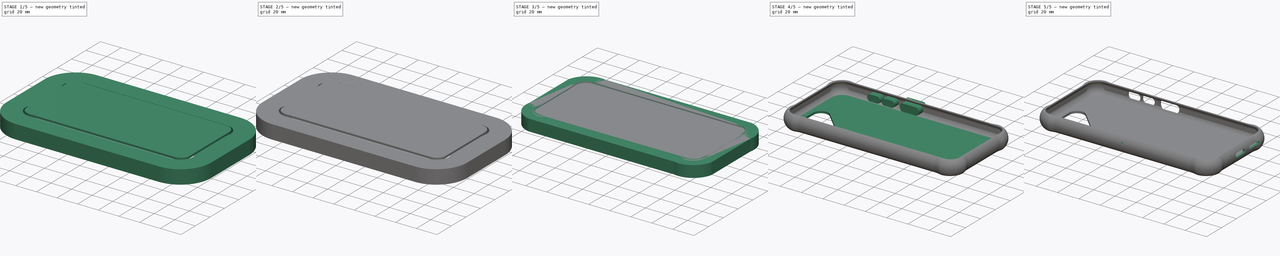
[diagram: build sequence overview — one tinted view per stage of 5, left to right]
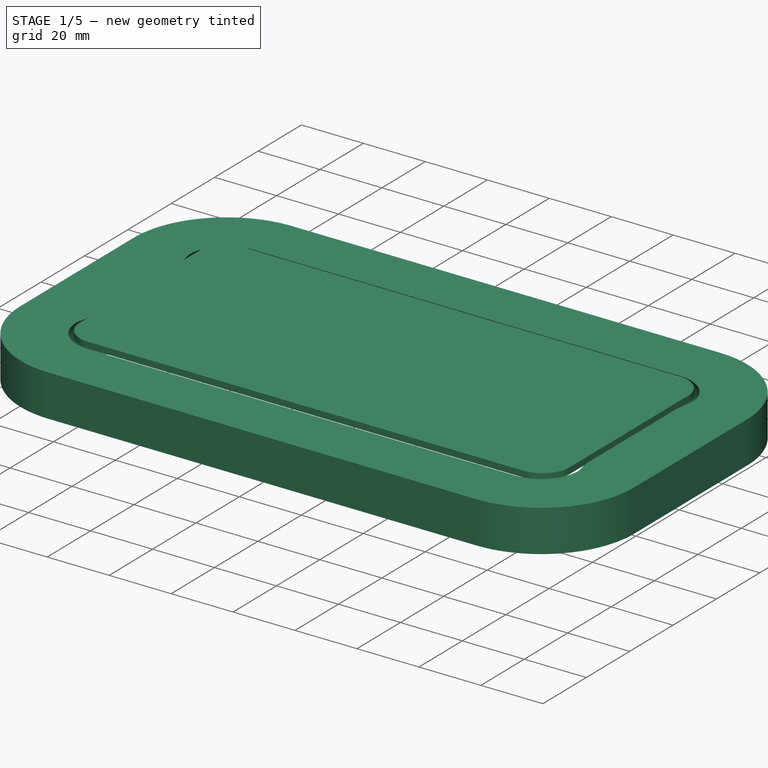
[diagram: stage 1 of 5 — iso view after this stage's code; geometry added in this stage tinted green]
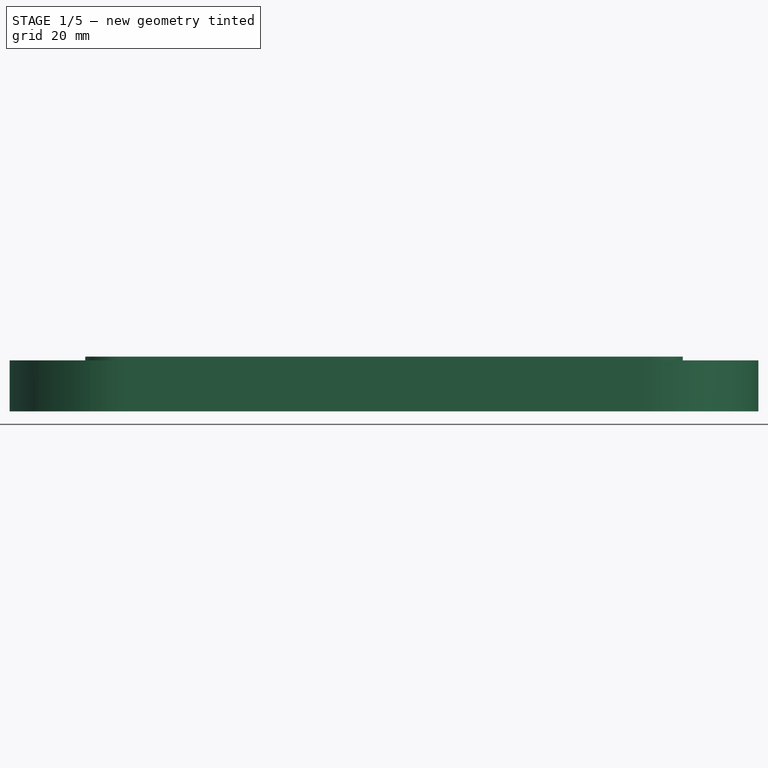
[diagram: stage 1 of 5 — front view after this stage's code; geometry added in this stage tinted green]
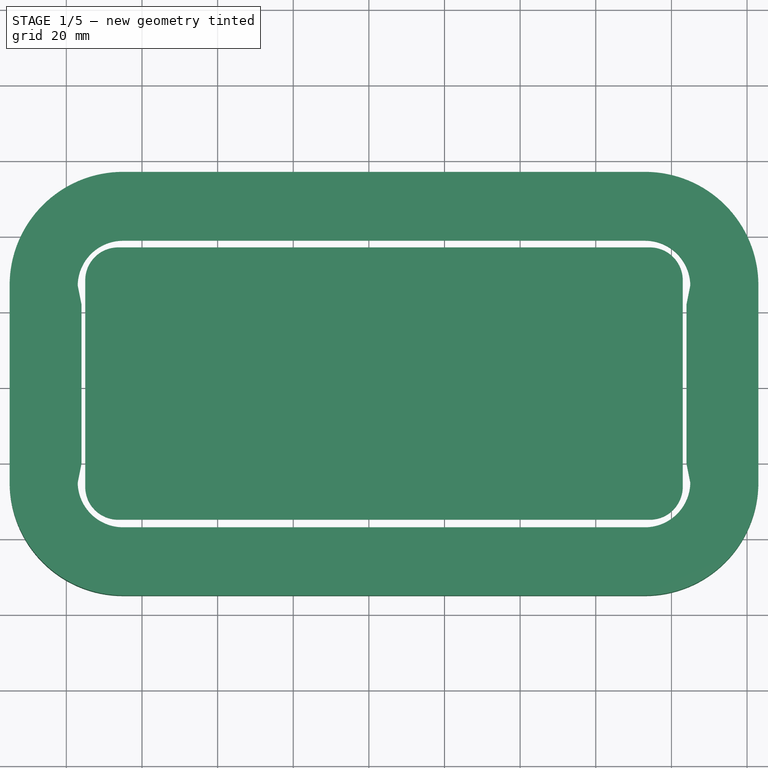
[diagram: stage 1 of 5 — top view after this stage's code; geometry added in this stage tinted green]
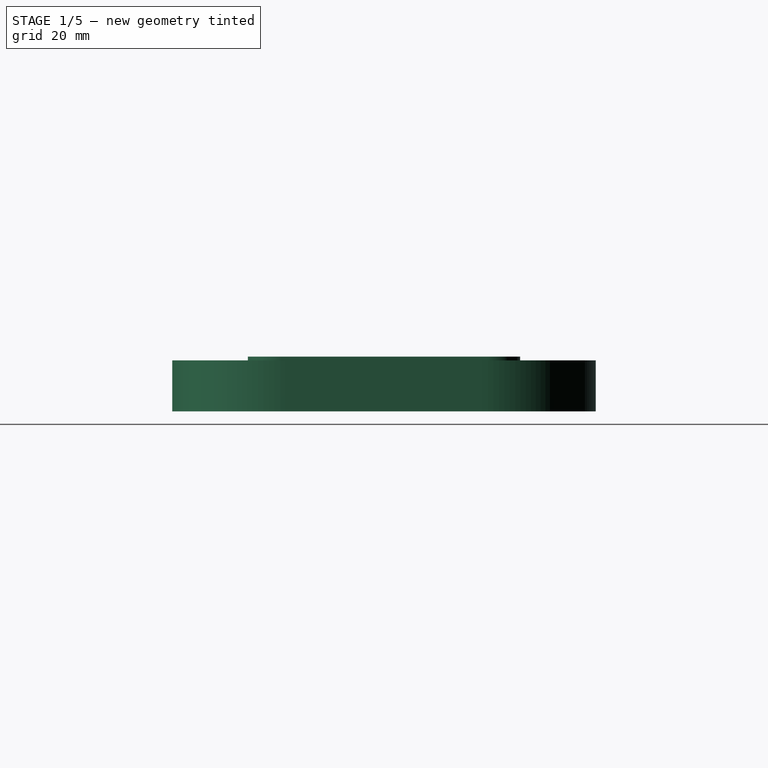
[diagram: stage 1 of 5 — right view after this stage's code; geometry added in this stage tinted green]
FCSTD DOCUMENT  (FreeCAD 0.19R)
Label: fairphone4_case
License: All rights reserved
LicenseURL: http://en.wikipedia.org/wiki/All_rights_reserved
objects: Sketcher::SketchObject×33, Part::Fuse×25, Part::Loft×19, Part::Extrusion×10, Part::Cut×7, Part::Box×2, Part::Sweep×2, Spreadsheet::Sheet×1
note: 98 computed .brp shape members not serialized (recipe doc carries the construction recipe); baked Part::Feature solids carry a one-line shape summary decoded from their .brp

FEATURE [Spreadsheet::Sheet] Spreadsheet  label="dimensions"
  cells = A1=phone width; B1(phone_width)==76mm; A2=phone length; B2(phone_length)==162mm; A3=phone height; B3(phone_height)==11mm; A4=case back thickness; B4(case_thickness_back)==2mm; A5=case side thickness; B5(case_thickness_side)==2mm; A6=case bumper thickness; B6(case_thickness_bumper)==1mm; A7=case front thickness; B7(case_thickness_front)==0.5mm; A8=case height; B8(case_height)==phone_height + case_thickness_back + case_thickness_front; A9=case width; B9(case_width)==phone_width + 2 * case_thickness_bumper + 2 * case_thickness_side; A10=case length; B10(case_length)==phone_length + 2 * case_thickness_bumper + 2 * case_thickness_side; A11=bumper length; B11(bumper_length)==15mm; A12=bumper fadeout; B12(bumper_fadeout)==5mm; A13=phone edge thickness; B13(phone_edge_thickness)==3mm; A14=phone inner width; B14(phone_inner_width)==phone_width - phone_edge_thickness; A15=phone inner length; B15(phone_inner_length)==phone_length - phone_edge_thickness; A16=phone edge radius; B16(phone_edge_radius)==8.699999999999999mm; A17=circular hole radius; B17(circular_hole_radius)==0.75mm; A18=lower circular hole offset center; B18(lower_circular_hole_offset_center)==12mm; A19=upper circular hole offset center; B19(upper_circular_hole_offset_center)==19mm; A20=circular hole height; B20(circular_hole_height)==7mm; A21=side hole depth; B21(side_hole_depth)==case_thickness_bumper + case_thickness_side + phone_edge_thickness; A22=usb port height; B22(usb_port_height)==4mm; A23=usb port width; B23(usb_port_width)==12mm; A24=usb port height offset; B24(usb_port_height_offset)==5.5mm; A25=right port height; B25(right_port_height)==2.5mm; A26=right port width; B26(right_port_width)==12.5mm; A27=right port height offset; B27(right_port_height_offset)==5.5mm; A28=right port center offset; B28(right_port_center_offset)==18mm; A29=lock button height; B29(lock_button_height)==7mm; A30=lock button width; B30(lock_button_width)==14mm; A31=lock button center offset; B31(lock_button_center_offset)==10mm; A32=lock button height offset; B32(lock_button_height_offset)==5.5mm; A33=lock button edge thickness; B33(lock_button_edge_thickness)==2mm; A34=lock button height outer; B34(lock_button_height_outer)==10mm; A35=lock button width outer; B35(lock_button_width_outer)==16mm; A36=volume button height; B36(volume_button_height)==6mm; A37=volume button width; B37(volume_button_width)==8mm; A38=volume down button center offset; B38(volume_down_center_offset)==30mm; A39=volume up button center offset; B39(volume_up_button_center_offset)==43.5mm; A40=volume button height offset; B40(volume_button_height_offset)==5.5mm; A41=volume button edge thickness; B41(volume_button_edge_thickness)==2mm; A42=volume button height outer; B42(volume_button_height_outer)==7.5mm; A43=volume button width outer; B43(volume_button_width_outer)==9mm; A44=camera area width; B44(camera_area_width)==33mm; A45=camera area height; B45(camera_area_height)==33mm; A46=camera area straight length; B46(camera_area_straight_length)==19mm; A47=camera area offset horizontal; B47(camera_area_offset_horizontal)==4mm; A48=camera area offset vertical; B48(camera_area_offset_vertical)==4mm; A49=display edge; B49(display_edge)==1mm
FEATURE [Part::Box] Box  label="case_base"
  AttacherType = Attacher::AttachEngine3D
  Height = 13.5
  Length = 168
  Width = 82
  expr: Length = <<dimensions>>.case_length
  expr: Width = <<dimensions>>.case_width
  expr: Height = <<dimensions>>.case_height
FEATURE [Part::Loft] Loft011
  Closed = false
  MaxDegree = 5
  Ruled = false
  Sections = -> [Sketch010,Sketch009]
  Solid = true
FEATURE [Sketcher::SketchObject] Sketch011  label="sketch_edge_start_lower_right"
  AttachmentOffset = pos=(0,0,-20) rot=(0,0,1;0rad)
  FullyConstrained = true
  MapMode = 5
  Placement = pos=(0,62,4.4e-15) rot=(0,0.707107,0.707107;3.14159rad)
  Support = -> [Box]
  expr: Constraints[20] = -1 * <<dimensions>>.case_length
  expr: Constraints[8] = <<dimensions>>.phone_edge_thickness
  expr: Constraints[9] = <<dimensions>>.phone_edge_thickness
  expr: Constraints[10] = <<dimensions>>.case_height
  expr: .AttachmentOffset.Base.z = -1 * (<<dimensions>>.bumper_length + <<dimensions>>.bumper_fadeout)
  expr: Constraints[19] = <<dimensions>>.case_thickness_bumper
  sketch-geometry (7):
    g0: LineSegment StartX=-167 StartY=13.5 StartZ=0 EndX=-167 EndY=0 EndZ=0
    g1: LineSegment StartX=-167 StartY=0 StartZ=0 EndX=-164 EndY=0 EndZ=0
    g2: LineSegment StartX=-167 StartY=13.5 StartZ=0 EndX=-164 EndY=13.5 EndZ=0
    g3: ArcOfCircle CenterX=-157.906 CenterY=6.75 CenterZ=0 NormalX=0 NormalY=0 NormalZ=1 AngleXU=0 Radius=9.09375 StartAngle=2.30514 EndAngle=3.97804
    g4: LineSegment StartX=-167 StartY=13.5 StartZ=0 EndX=-168 EndY=13.5 EndZ=0
    g5: LineSegment StartX=-168 StartY=13.5 StartZ=0 EndX=-168 EndY=0 EndZ=0
    g6: LineSegment StartX=-168 StartY=0 StartZ=0 EndX=-167 EndY=0 EndZ=0
  constraints (21):
    c: Vertical(g0)
    c: Coincident(g1,g0)
    c: Horizontal(g1)
    c: Coincident(g2,g0)
    c: Horizontal(g2)
    c: Coincident(g3,g2)
    c: Coincident(g3,g1)
    c: Tangent(g3,g0)
    c: Distance(g2) = 3
    c: Distance(g1) = 3
    c: Distance(g0) = 13.5
    c: DistanceY(g0) = 0
    c: Coincident(g4,g0)
    c: Horizontal(g4)
    c: Coincident(g5,g4)
    c: Vertical(g5)
    c: Coincident(g6,g5)
    c: Coincident(g6,g0)
    c: Parallel(g4,g6)
    c: Distance(g4) = 1
    c: DistanceX(g5) = -168
FEATURE [Part::Loft] Loft009
  Closed = false
  MaxDegree = 5
  Ruled = false
  Sections = -> [Sketch011,Sketch009]
  Solid = true
FEATURE [Part::Loft] Loft010
  Closed = false
  MaxDegree = 5
  Ruled = false
  Sections = -> [Sketch008,Sketch011]
  Solid = true
FEATURE [Sketcher::SketchObject] Sketch016  label="sketch_bumper_start_upper_left"
  AttachmentOffset = pos=(0,0,-15) rot=(0,0,1;0rad)
  FullyConstrained = true
  MapMode = 5
  Placement = pos=(0,15,-3.3e-15) rot=(1,0,0;1.5708rad)
  Support = -> [Box]
  expr: Constraints[4] = <<dimensions>>.phone_edge_thickness
  expr: Constraints[6] = <<dimensions>>.case_height
  expr: .AttachmentOffset.Base.z = -1 * <<dimensions>>.bumper_length
  expr: Constraints[5] = <<dimensions>>.phone_edge_thickness
  sketch-geometry (4):
    g0: LineSegment StartX=0 StartY=13.5 StartZ=0 EndX=0 EndY=0 EndZ=0
    g1: LineSegment StartX=0 StartY=13.5 StartZ=0 EndX=3 EndY=13.5 EndZ=0
    g2: LineSegment StartX=0 StartY=0 StartZ=0 EndX=3 EndY=0 EndZ=0
    g3: ArcOfCircle CenterX=9.09375 CenterY=6.75 CenterZ=0 NormalX=0 NormalY=0 NormalZ=1 AngleXU=0 Radius=9.09375 StartAngle=2.30514 EndAngle=3.97804
  constraints (13):
    c: Vertical(g0)
    c: Horizontal(g1)
    c: Coincident(g2,g0)
    c: Horizontal(g2)
    c: Distance(g1) = 3
    c: Distance(g2) = 3
    c: Distance(g0) = 13.5
    c: DistanceY(g0) = 0
    c: Coincident(g1,g0)
    c: DistanceX(g0) = 0
    c: Coincident(g3,g1)
    c: Coincident(g3,g2)
    c: Tangent(g3,g0)
FEATURE [Sketcher::SketchObject] Sketch017  label="sketch_edge_start_upper_right"
  AttachmentOffset = pos=(0,0,-20) rot=(0,0,1;0rad)
  FullyConstrained = true
  MapMode = 5
  Placement = pos=(0,62,4.4e-15) rot=(0,0.707107,0.707107;3.14159rad)
  Support = -> [Box]
  expr: Constraints[16] = <<dimensions>>.case_thickness_bumper
  expr: Constraints[6] = <<dimensions>>.phone_edge_thickness
  expr: Constraints[7] = <<dimensions>>.case_height
  expr: .AttachmentOffset.Base.z = -1 * (<<dimensions>>.bumper_length + <<dimensions>>.bumper_fadeout)
  expr: Constraints[5] = <<dimensions>>.phone_edge_thickness
  sketch-geometry (7):
    g0: LineSegment StartX=-1 StartY=13.5 StartZ=0 EndX=-1 EndY=0 EndZ=0
    g1: LineSegment StartX=-1 StartY=0 StartZ=0 EndX=-4 EndY=0 EndZ=0
    g2: LineSegment StartX=-1 StartY=13.5 StartZ=0 EndX=-4 EndY=13.5 EndZ=0
    g3: LineSegment StartX=-1 StartY=13.5 StartZ=0 EndX=0 EndY=13.5 EndZ=0
    g4: LineSegment StartX=0 StartY=13.5 StartZ=0 EndX=0 EndY=0 EndZ=0
    g5: LineSegment StartX=0 StartY=0 StartZ=0 EndX=-1 EndY=0 EndZ=0
    g6: ArcOfCircle CenterX=-10.0937 CenterY=6.75 CenterZ=0 NormalX=0 NormalY=0 NormalZ=1 AngleXU=0 Radius=9.09375 StartAngle=5.44674 EndAngle=7.11963
  constraints (21):
    c: Vertical(g0)
    c: Coincident(g1,g0)
    c: Horizontal(g1)
    c: Coincident(g2,g0)
    c: Horizontal(g2)
    c: Distance(g2) = 3
    c: Distance(g1) = 3
    c: Distance(g0) = 13.5
    c: DistanceY(g0) = 0
    c: Coincident(g3,g0)
    c: Horizontal(g3)
    c: Coincident(g4,g3)
    c: Vertical(g4)
    c: Coincident(g5,g4)
    c: Coincident(g5,g0)
    c: Parallel(g3,g5)
    c: Distance(g3) = 1
    c: Coincident(g6,g2)
    c: Coincident(g6,g1)
    c: Tangent(g6,g0)
    c: DistanceX(g4) = 0
FEATURE [Sketcher::SketchObject] Sketch018  label="sketch_edge_start_upper_left"
  AttachmentOffset = pos=(0,0,-20) rot=(0,0,1;0rad)
  FullyConstrained = true
  MapMode = 5
  Placement = pos=(0,20,-4.4e-15) rot=(1,0,0;1.5708rad)
  Support = -> [Box]
  expr: Constraints[14] = <<dimensions>>.case_thickness_bumper
  expr: Constraints[15] = <<dimensions>>.case_height
  expr: Constraints[13] = <<dimensions>>.phone_edge_thickness
  expr: .AttachmentOffset.Base.z = -1 * (<<dimensions>>.bumper_length + <<dimensions>>.bumper_fadeout)
  expr: Constraints[12] = <<dimensions>>.phone_edge_thickness
  sketch-geometry (7):
    g0: LineSegment StartX=0 StartY=13.5 StartZ=0 EndX=1 EndY=13.5 EndZ=0
    g1: LineSegment StartX=1 StartY=13.5 StartZ=0 EndX=1 EndY=0 EndZ=0
    g2: LineSegment StartX=1 StartY=0 StartZ=0 EndX=0 EndY=0 EndZ=0
    g3: LineSegment StartX=0 StartY=0 StartZ=0 EndX=0 EndY=13.5 EndZ=0
    g4: LineSegment StartX=1 StartY=13.5 StartZ=0 EndX=4 EndY=13.5 EndZ=0
    g5: LineSegment StartX=1 StartY=0 StartZ=0 EndX=4 EndY=0 EndZ=0
    g6: ArcOfCircle CenterX=10.0937 CenterY=6.75 CenterZ=0 NormalX=0 NormalY=0 NormalZ=1 AngleXU=0 Radius=9.09375 StartAngle=2.30514 EndAngle=3.97804
  constraints (21):
    c: Horizontal(g0)
    c: Coincident(g1,g0)
    c: Vertical(g1)
    c: Coincident(g2,g1)
    c: Horizontal(g2)
    c: Coincident(g3,g2)
    c: Coincident(g3,g0)
    c: Vertical(g3)
    c: Coincident(g4,g0)
    c: Horizontal(g4)
    c: Coincident(g5,g1)
    c: Horizontal(g5)
    c: Distance(g4) = 3
    c: Distance(g5) = 3
    c: Distance(g0) = 1
    c: Distance(g1) = 13.5
    c: DistanceY(g2) = 0
    c: Coincident(g6,g4)
    c: Coincident(g6,g5)
    c: Tangent(g6,g1)
    c: DistanceX(g2) = 0
FEATURE [Part::Loft] Loft013
  Closed = false
  MaxDegree = 5
  Ruled = false
  Sections = -> [Sketch016,Sketch018]
  Solid = true
FEATURE [Part::Loft] Loft014
  Closed = false
  MaxDegree = 5
  Ruled = false
  Sections = -> [Sketch017,Sketch018]
  Solid = true
FEATURE [Sketcher::SketchObject] Sketch019  label="sketch_bumper_start_upper_right"
  AttachmentOffset = pos=(0,0,-15) rot=(0,0,1;0rad)
  FullyConstrained = true
  MapMode = 5
  Placement = pos=(0,67,3.3e-15) rot=(0,0.707107,0.707107;3.14159rad)
  Support = -> [Box]
  expr: .AttachmentOffset.Base.z = -1 * <<dimensions>>.bumper_length
  expr: Constraints[8] = <<dimensions>>.phone_edge_thickness
  expr: Constraints[3] = <<dimensions>>.phone_edge_thickness
  expr: Constraints[4] = <<dimensions>>.case_height
  sketch-geometry (4):
    g0: LineSegment StartX=0 StartY=13.5 StartZ=0 EndX=0 EndY=0 EndZ=0
    g1: LineSegment StartX=0 StartY=0 StartZ=0 EndX=-3 EndY=0 EndZ=0
    g2: LineSegment StartX=-3 StartY=13.5 StartZ=0 EndX=0 EndY=13.5 EndZ=0
    g3: ArcOfCircle CenterX=-9.09375 CenterY=6.75 CenterZ=0 NormalX=0 NormalY=0 NormalZ=1 AngleXU=0 Radius=9.09375 StartAngle=5.44674 EndAngle=7.11963
  constraints (13):
    c: Vertical(g0)
    c: Coincident(g1,g0)
    c: Horizontal(g1)
    c: Distance(g1) = 3
    c: Distance(g0) = 13.5
    c: DistanceY(g0) = 0
    c: Coincident(g2,g0)
    c: Horizontal(g2)
    c: Distance(g2) = 3
    c: Coincident(g3,g2)
    c: Coincident(g3,g1)
    c: Tangent(g3,g0)
    c: DistanceX(g0) = 0
FEATURE [Part::Loft] Loft012
  Closed = false
  MaxDegree = 5
  Ruled = false
  Sections = -> [Sketch019,Sketch017]
  Solid = true
FEATURE [Part::Loft] Loft015
  Closed = false
  MaxDegree = 5
  Ruled = false
  Sections = -> [Sketch019,Sketch016]
  Solid = true
FEATURE [Part::Fuse] Fusion010
  Base = -> Loft014
  Tool = -> Loft015
FEATURE [Part::Fuse] Fusion011
  Base = -> Loft013
  Tool = -> Fusion010
FEATURE [Part::Fuse] Fusion009  label="edge_upper"
  Base = -> Loft012
  Tool = -> Fusion011
FEATURE [Sketcher::SketchObject] Sketch024  label="sketch_phone_edge_start_right_upper"
  AttachmentOffset = pos=(0,0,-8.7) rot=(0,0,1;0rad)
  FullyConstrained = true
  MapMode = 5
  Placement = pos=(11.7,3,2) rot=(0.57735,-0.57735,-0.57735;2.0944rad)
  Support = -> [Box001]
  expr: .AttachmentOffset.Base.z = -1 * <<dimensions>>.phone_edge_radius
  expr: Constraints[8] = <<dimensions>>.phone_height
  expr: Constraints[9] = -1 * <<dimensions>>.phone_width
  expr: Constraints[11] = <<dimensions>>.phone_edge_thickness
  expr: Constraints[12] = <<dimensions>>.phone_edge_thickness
  expr: Constraints[20] = <<dimensions>>.phone_edge_radius
  sketch-geometry (7):
    g0: ArcOfCircle CenterX=-69.4583 CenterY=5.5 CenterZ=0 NormalX=0 NormalY=0 NormalZ=1 AngleXU=0 Radius=6.54167 StartAngle=2.1429 EndAngle=4.14029
    g1: LineSegment StartX=-73 StartY=11 StartZ=0 EndX=-76 EndY=11 EndZ=0
    g2: LineSegment StartX=-76 StartY=11 StartZ=0 EndX=-76 EndY=0 EndZ=0
    g3: LineSegment StartX=-73 StartY=4.183e-13 StartZ=0 EndX=-76 EndY=0 EndZ=0
    g4: LineSegment StartX=-76 StartY=11 StartZ=0 EndX=-84.7 EndY=11 EndZ=0
    g5: LineSegment StartX=-84.7 StartY=11 StartZ=0 EndX=-84.7 EndY=0 EndZ=0
    g6: LineSegment StartX=-84.7 StartY=0 StartZ=0 EndX=-76 EndY=0 EndZ=0
  constraints (21):
    c: Coincident(g1,g0)
    c: Horizontal(g1)
    c: Coincident(g2,g1)
    c: Vertical(g2)
    c: Coincident(g3,g0)
    c: Coincident(g3,g2)
    c: Parallel(g1,g3)
    c: Tangent(g2,g0)
    c: Distance(g2) = 11
    c: DistanceX(g2) = -76
    c: DistanceY(g2) = 0
    c: Distance(g1) = 3
    c: Distance(g3) = 3
    c: Coincident(g4,g1)
    c: Coincident(g5,g4)
    c: Vertical(g5)
    c: Coincident(g6,g5)
    c: Coincident(g6,g3)
    c: Parallel(g4,g6)
    c: DistanceY(g5) = 0
    c: Distance(g4) = 8.7
FEATURE [Sketcher::SketchObject] Sketch027  label="bumper_spline"
  FullyConstrained = true
  MapMode = 5
  Placement = pos=(0,0,13.5) rot=(0,0,1;0rad)
  Support = -> [Box]
  expr: Constraints[19] = <<dimensions>>.bumper_length
  expr: Constraints[18] = <<dimensions>>.case_width - <<dimensions>>.phone_edge_thickness
  expr: Constraints[17] = <<dimensions>>.phone_edge_thickness
  expr: Constraints[16] = <<dimensions>>.bumper_length
  expr: Constraints[7] = <<dimensions>>.case_width - 2 * <<dimensions>>.bumper_length
  expr: Constraints[6] = <<dimensions>>.case_width - 2 * <<dimensions>>.bumper_length
  expr: Constraints[5] = <<dimensions>>.case_length - 2 * <<dimensions>>.bumper_length
  expr: Constraints[4] = <<dimensions>>.case_length - 2 * <<dimensions>>.bumper_length
  sketch-geometry (8):
    g0: LineSegment StartX=15 StartY=3 StartZ=0 EndX=153 EndY=3 EndZ=0
    g1: LineSegment StartX=165 StartY=15 StartZ=0 EndX=165 EndY=67 EndZ=0
    g2: LineSegment StartX=153 StartY=79 StartZ=0 EndX=15 EndY=79 EndZ=0
    g3: LineSegment StartX=3 StartY=67 StartZ=0 EndX=3 EndY=15 EndZ=0
    g4: ArcOfCircle CenterX=15 CenterY=15 CenterZ=0 NormalX=0 NormalY=0 NormalZ=1 AngleXU=0 Radius=12 StartAngle=3.14159 EndAngle=4.71239
    g5: ArcOfCircle CenterX=15 CenterY=67 CenterZ=0 NormalX=0 NormalY=0 NormalZ=1 AngleXU=0 Radius=12 StartAngle=1.5708 EndAngle=3.14159
    g6: ArcOfCircle CenterX=153 CenterY=67 CenterZ=0 NormalX=0 NormalY=0 NormalZ=1 AngleXU=0 Radius=12 StartAngle=-9e-16 EndAngle=1.5708
    g7: ArcOfCircle CenterX=153 CenterY=15 CenterZ=0 NormalX=0 NormalY=0 NormalZ=1 AngleXU=0 Radius=12 StartAngle=4.71239 EndAngle=6.28319
  constraints (20):
    c: Horizontal(g0)
    c: Vertical(g1)
    c: Horizontal(g2)
    c: Vertical(g3)
    c: Distance(g0) = 138
    c: Distance(g2) = 138
    c: Distance(g3) = 52
    c: Distance(g1) = 52
    c: Tangent(g4,g3) = -1.5708
    c: Tangent(g4,g0) = -1.5708
    c: Tangent(g7,g0) = -1.5708
    c: Tangent(g7,g1) = -1.5708
    c: Tangent(g6,g1) = -1.5708
    c: Tangent(g6,g2) = -1.5708
    c: Tangent(g5,g2) = -1.5708
    c: Tangent(g5,g3) = -1.5708
    c: DistanceX(g0) = 15
    c: DistanceY(g0) = 3
    c: DistanceY(g2) = 79
    c: DistanceX(g2) = 15
FEATURE [Sketcher::SketchObject] Sketch028  label="sketch_bumper_corners"
  AttachmentOffset = pos=(0,0,-15) rot=(0,0,1;0rad)
  FullyConstrained = true
  MapMode = 5
  Placement = pos=(15,0,0) rot=(0.57735,-0.57735,-0.57735;2.0944rad)
  Support = -> [Box]
  expr: Constraints[6] = <<dimensions>>.phone_edge_thickness
  expr: .AttachmentOffset.Base.z = -1 * <<dimensions>>.bumper_length
  expr: Constraints[7] = <<dimensions>>.phone_edge_thickness
  expr: Constraints[8] = <<dimensions>>.case_height
  expr: Constraints[19] = <<dimensions>>.bumper_length
  sketch-geometry (7):
    g0: LineSegment StartX=0 StartY=13.5 StartZ=0 EndX=0 EndY=0 EndZ=0
    g1: LineSegment StartX=0 StartY=13.5 StartZ=0 EndX=-3 EndY=13.5 EndZ=0
    g2: LineSegment StartX=0 StartY=0 StartZ=0 EndX=-3 EndY=0 EndZ=0
    g3: ArcOfCircle CenterX=-9.09375 CenterY=6.75 CenterZ=0 NormalX=0 NormalY=0 NormalZ=1 AngleXU=0 Radius=9.09375 StartAngle=5.44674 EndAngle=7.11963
    g4: LineSegment StartX=0 StartY=13.5 StartZ=0 EndX=15 EndY=13.5 EndZ=0
    g5: LineSegment StartX=15 StartY=13.5 StartZ=0 EndX=15 EndY=0 EndZ=0
    g6: LineSegment StartX=15 StartY=0 StartZ=0 EndX=0 EndY=0 EndZ=0
  constraints (21):
    c: Vertical(g0)
    c: Horizontal(g1)
    c: Coincident(g2,g0)
    c: Horizontal(g2)
    c: Coincident(g3,g1)
    c: Coincident(g3,g2)
    c: Distance(g1) = 3
    c: Distance(g2) = 3
    c: Distance(g0) = 13.5
    c: DistanceX(g0) = 0
    c: DistanceY(g0) = 0
    c: Coincident(g1,g0)
    c: Tangent(g3,g0)
    c: Coincident(g4,g1)
    c: Coincident(g5,g4)
    c: Vertical(g5)
    c: Coincident(g6,g5)
    c: Coincident(g6,g2)
    c: Parallel(g4,g6)
    c: Distance(g4) = 15
    c: DistanceY(g5) = 0
FEATURE [Part::Sweep] Sweep  label="corners"
  Frenet = false
  Sections = -> [Sketch028]
  Solid = true
  Spine = -> Sketch027 [Edge7,Edge6,Edge5,Edge4,Edge3,Edge2,Edge1,Edge8]
  Transition = 1
FEATURE [Sketcher::SketchObject] Sketch042  label="sketch_display"
  FullyConstrained = true
  MapMode = 5
  Placement = pos=(0,0,13.5) rot=(0,0,1;0rad)
  Support = -> [Box]
  expr: Constraints[27] = <<dimensions>>.phone_edge_radius
  expr: Constraints[26] = <<dimensions>>.case_length - (<<dimensions>>.case_thickness_bumper + <<dimensions>>.phone_edge_thickness + <<dimensions>>.case_thickness_side - <<dimensions>>.display_edge)
  expr: Constraints[25] = <<dimensions>>.case_width - (<<dimensions>>.case_thickness_bumper + <<dimensions>>.phone_edge_thickness + <<dimensions>>.case_thickness_side - <<dimensions>>.display_edge)
  expr: Constraints[13] = <<dimensions>>.case_thickness_bumper + <<dimensions>>.phone_edge_thickness + <<dimensions>>.case_thickness_side - <<dimensions>>.display_edge
  expr: Constraints[12] = <<dimensions>>.case_thickness_bumper + <<dimensions>>.phone_edge_thickness + <<dimensions>>.case_thickness_side - <<dimensions>>.display_edge
  sketch-geometry (12):
    g0: LineSegment StartX=13.7 StartY=5 StartZ=0 EndX=154.3 EndY=5 EndZ=0
    g1: LineSegment StartX=163 StartY=13.7 StartZ=0 EndX=163 EndY=68.3 EndZ=0
    g2: LineSegment StartX=154.3 StartY=77 StartZ=0 EndX=13.7 EndY=77 EndZ=0
    g3: LineSegment StartX=5 StartY=68.3 StartZ=0 EndX=5 EndY=13.7 EndZ=0
    g4: ArcOfCircle CenterX=13.7 CenterY=13.7 CenterZ=0 NormalX=0 NormalY=0 NormalZ=1 AngleXU=0 Radius=8.7 StartAngle=3.14159 EndAngle=4.71239
    g5: ArcOfCircle CenterX=13.7 CenterY=68.3 CenterZ=0 NormalX=0 NormalY=0 NormalZ=1 AngleXU=0 Radius=8.7 StartAngle=1.5708 EndAngle=3.14159
    g6: ArcOfCircle CenterX=154.3 CenterY=68.3 CenterZ=0 NormalX=0 NormalY=0 NormalZ=1 AngleXU=0 Radius=8.7 StartAngle=5e-16 EndAngle=1.5708
    g7: ArcOfCircle CenterX=154.3 CenterY=13.7 CenterZ=0 NormalX=0 NormalY=0 NormalZ=1 AngleXU=0 Radius=8.7 StartAngle=4.71239 EndAngle=6.28319
    g8: LineSegment StartX=13.7 StartY=68.3 StartZ=0 EndX=154.3 EndY=68.3 EndZ=0
    g9: LineSegment StartX=154.3 StartY=68.3 StartZ=0 EndX=154.3 EndY=13.7 EndZ=0
    g10: LineSegment StartX=154.3 StartY=13.7 StartZ=0 EndX=13.7 EndY=13.7 EndZ=0
    g11: LineSegment StartX=13.7 StartY=13.7 StartZ=0 EndX=13.7 EndY=68.3 EndZ=0
  constraints (28):
    c: Horizontal(g0)
    c: Vertical(g1)
    c: Horizontal(g2)
    c: Vertical(g3)
    c: Tangent(g4,g3) = -1.5708
    c: Tangent(g4,g0) = -1.5708
    c: Tangent(g7,g0) = -1.5708
    c: Tangent(g7,g1) = -1.5708
    c: Tangent(g6,g1) = -1.5708
    c: Tangent(g6,g2) = -1.5708
    c: Tangent(g5,g2) = -1.5708
    c: Tangent(g5,g3) = -1.5708
    c: DistanceY(g0) = 5
    c: DistanceX(g3) = 5
    c: Coincident(g8,g5)
    c: Coincident(g8,g6)
    c: Horizontal(g8)
    c: Coincident(g9,g6)
    c: Coincident(g9,g7)
    c: Vertical(g9)
    c: Coincident(g10,g7)
    c: Coincident(g10,g4)
    c: Horizontal(g10)
    c: Coincident(g11,g4)
    c: Coincident(g11,g5)
    c: DistanceY(g2) = 77
    c: DistanceX(g1) = 163
    c: Radius(g6) = 8.7
FEATURE [Part::Extrusion] Extrude009  label="display"
  Base = -> Sketch042
  Dir = (0,0,1)
  DirMode = 2
  FaceMakerClass = Part::FaceMakerBullseye
  LengthFwd = 1
  LengthRev = 1
  Solid = true
  Symmetric = false
  expr: LengthRev = <<dimensions>>.case_thickness_front * 2
  expr: LengthFwd = <<dimensions>>.case_thickness_front * 2
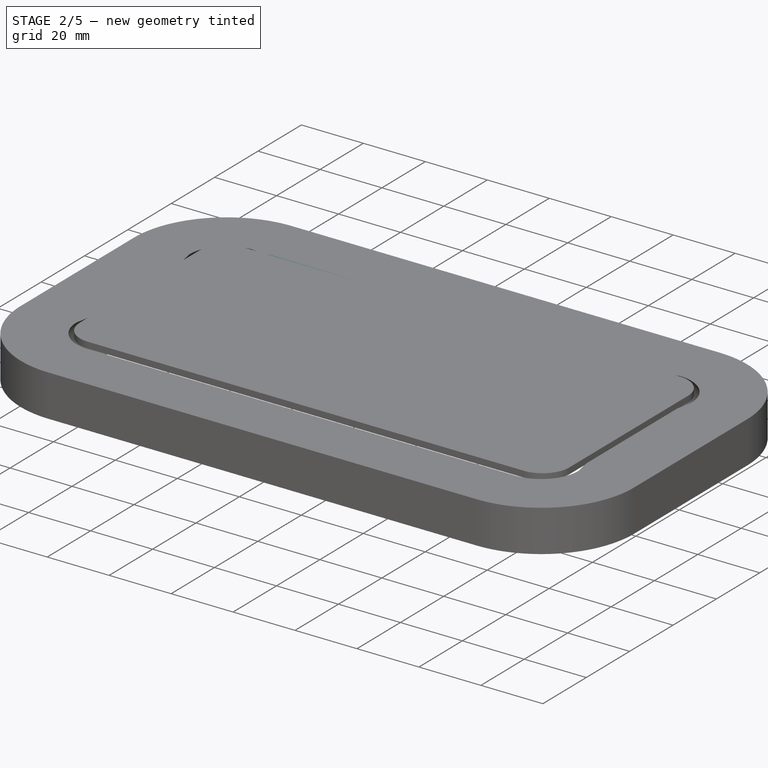
[diagram: stage 2 of 5 — iso view after this stage's code; geometry added in this stage tinted green]
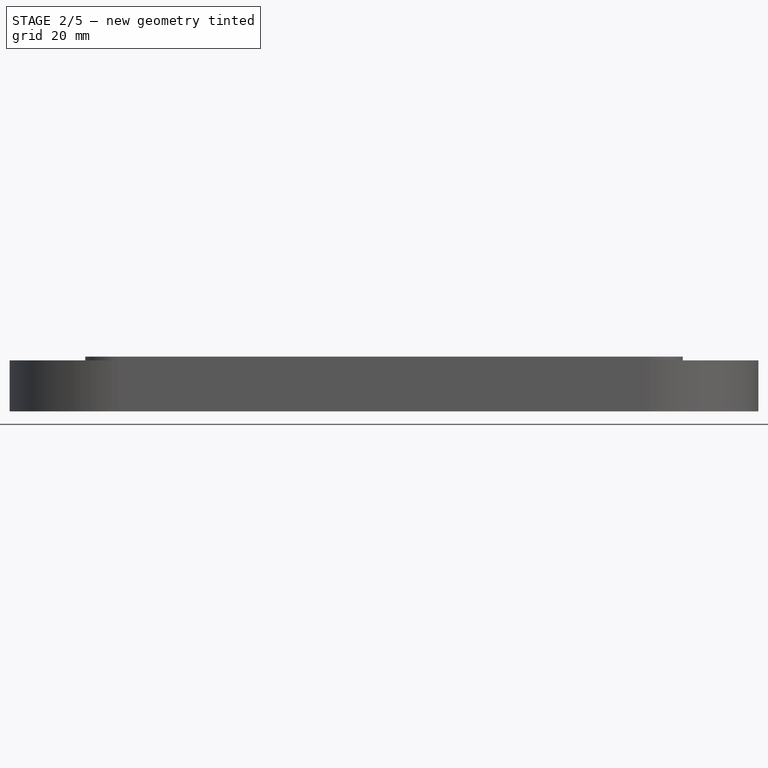
[diagram: stage 2 of 5 — front view after this stage's code; geometry added in this stage tinted green]
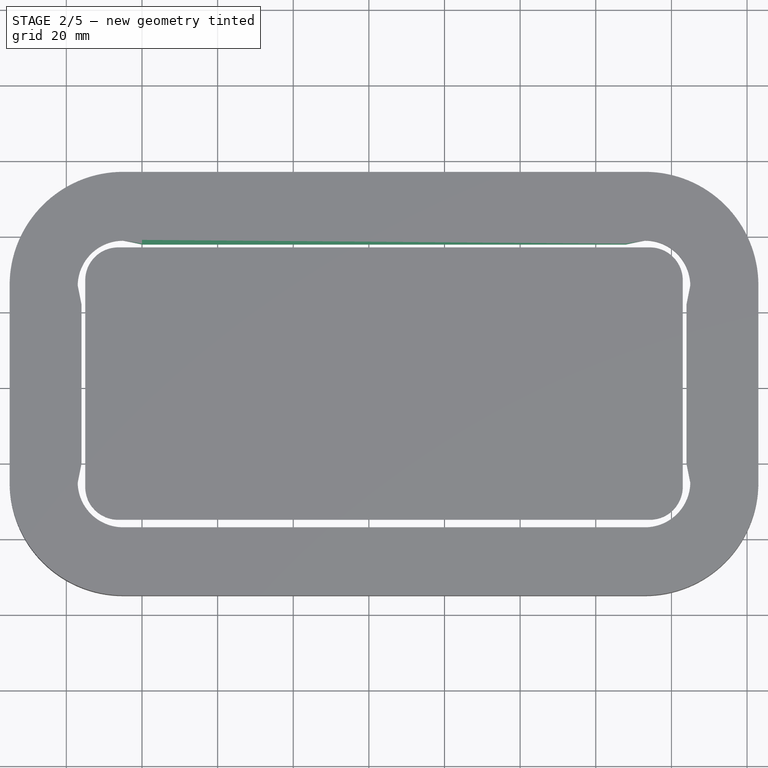
[diagram: stage 2 of 5 — top view after this stage's code; geometry added in this stage tinted green]
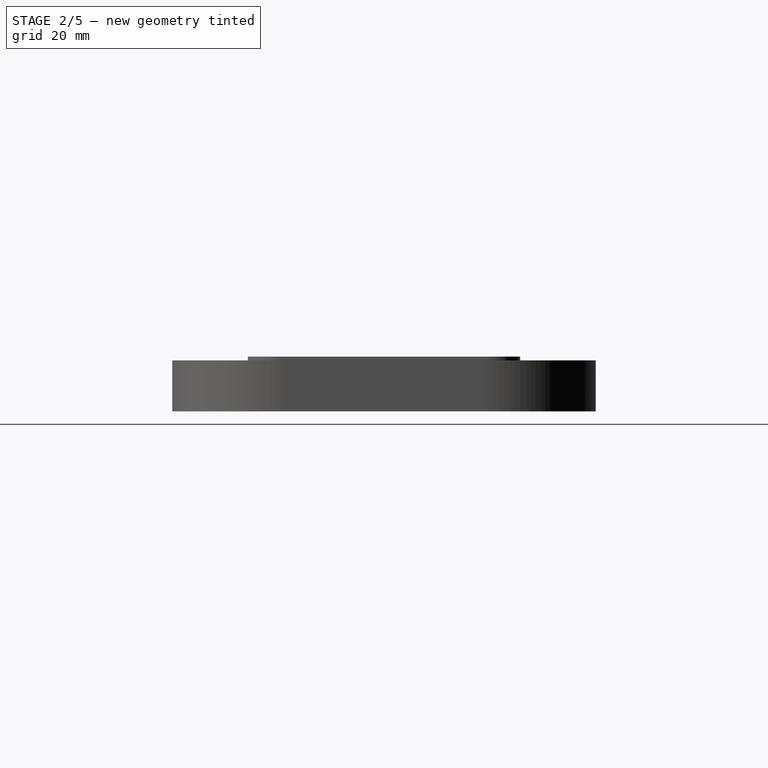
[diagram: stage 2 of 5 — right view after this stage's code; geometry added in this stage tinted green]
FEATURE [Sketcher::SketchObject] Sketch004  label="sketch_edge_start_right_upper"
  AttachmentOffset = pos=(0,0,-20) rot=(0,0,1;0rad)
  FullyConstrained = true
  MapMode = 5
  Placement = pos=(20,0,0) rot=(0.57735,-0.57735,-0.57735;2.0944rad)
  Support = -> [Box]
  expr: Constraints[19] = <<dimensions>>.case_thickness_bumper
  expr: .AttachmentOffset.Base.z = -1 * (<<dimensions>>.bumper_length + <<dimensions>>.bumper_fadeout)
  expr: Constraints[10] = <<dimensions>>.case_height
  expr: Constraints[9] = <<dimensions>>.phone_edge_thickness
  expr: Constraints[8] = <<dimensions>>.phone_edge_thickness
  expr: Constraints[20] = -1 * <<dimensions>>.case_width
  sketch-geometry (7):
    g0: LineSegment StartX=-81 StartY=13.5 StartZ=0 EndX=-81 EndY=0 EndZ=0
    g1: LineSegment StartX=-81 StartY=0 StartZ=0 EndX=-78 EndY=0 EndZ=0
    g2: LineSegment StartX=-81 StartY=13.5 StartZ=0 EndX=-78 EndY=13.5 EndZ=0
    g3: ArcOfCircle CenterX=-71.9063 CenterY=6.75 CenterZ=0 NormalX=0 NormalY=0 NormalZ=1 AngleXU=0 Radius=9.09375 StartAngle=2.30514 EndAngle=3.97804
    g4: LineSegment StartX=-81 StartY=13.5 StartZ=0 EndX=-82 EndY=13.5 EndZ=0
    g5: LineSegment StartX=-82 StartY=13.5 StartZ=0 EndX=-82 EndY=0 EndZ=0
    g6: LineSegment StartX=-82 StartY=0 StartZ=0 EndX=-81 EndY=0 EndZ=0
  constraints (21):
    c: Vertical(g0)
    c: Coincident(g1,g0)
    c: Horizontal(g1)
    c: Coincident(g2,g0)
    c: Horizontal(g2)
    c: Coincident(g3,g2)
    c: Coincident(g3,g1)
    c: Tangent(g3,g0)
    c: Distance(g2) = 3
    c: Distance(g1) = 3
    c: Distance(g0) = 13.5
    c: DistanceY(g0) = 0
    c: Coincident(g4,g0)
    c: Horizontal(g4)
    c: Coincident(g5,g4)
    c: Vertical(g5)
    c: Coincident(g6,g5)
    c: Coincident(g6,g0)
    c: Parallel(g4,g6)
    c: Distance(g4) = 1
    c: DistanceX(g5) = -82
FEATURE [Sketcher::SketchObject] Sketch005  label="sketch_edge_start_right_lower"
  AttachmentOffset = pos=(0,0,-20) rot=(0,0,1;0rad)
  FullyConstrained = true
  MapMode = 5
  Placement = pos=(148,0,0) rot=(0.57735,0.57735,0.57735;2.0944rad)
  Support = -> [Box]
  expr: .AttachmentOffset.Base.z = -1 * (<<dimensions>>.bumper_length + <<dimensions>>.bumper_fadeout)
  expr: Constraints[18] = <<dimensions>>.case_height
  expr: Constraints[17] = <<dimensions>>.case_thickness_bumper
  expr: Constraints[16] = <<dimensions>>.phone_edge_thickness
  expr: Constraints[15] = <<dimensions>>.phone_edge_thickness
  expr: Constraints[19] = <<dimensions>>.case_width
  sketch-geometry (7):
    g0: LineSegment StartX=82 StartY=13.5 StartZ=0 EndX=81 EndY=13.5 EndZ=0
    g1: LineSegment StartX=81 StartY=13.5 StartZ=0 EndX=81 EndY=0 EndZ=0
    g2: LineSegment StartX=81 StartY=0 StartZ=0 EndX=82 EndY=0 EndZ=0
    g3: LineSegment StartX=82 StartY=0 StartZ=0 EndX=82 EndY=13.5 EndZ=0
    g4: LineSegment StartX=81 StartY=13.5 StartZ=0 EndX=78 EndY=13.5 EndZ=0
    g5: LineSegment StartX=81 StartY=0 StartZ=0 EndX=78 EndY=0 EndZ=0
    g6: ArcOfCircle CenterX=71.9063 CenterY=6.75 CenterZ=0 NormalX=0 NormalY=0 NormalZ=1 AngleXU=0 Radius=9.09375 StartAngle=5.44674 EndAngle=7.11963
  constraints (21):
    c: Horizontal(g0)
    c: Coincident(g1,g0)
    c: Vertical(g1)
    c: Coincident(g2,g1)
    c: Horizontal(g2)
    c: Coincident(g3,g2)
    c: Coincident(g3,g0)
    c: Vertical(g3)
    c: Coincident(g4,g0)
    c: Horizontal(g4)
    c: Coincident(g5,g1)
    c: Horizontal(g5)
    c: Coincident(g6,g4)
    c: Coincident(g6,g5)
    c: Tangent(g6,g1)
    c: Distance(g4) = 3
    c: Distance(g5) = 3
    c: Distance(g0) = 1
    c: Distance(g1) = 13.5
    c: DistanceX(g2) = 82
    c: DistanceY(g2) = 0
FEATURE [Part::Loft] Loft005
  Closed = false
  MaxDegree = 5
  Ruled = false
  Sections = -> [Sketch004,Sketch005]
  Solid = true
FEATURE [Sketcher::SketchObject] Sketch006  label="sketch_bumper_start_right_upper"
  AttachmentOffset = pos=(0,0,-15) rot=(0,0,1;0rad)
  FullyConstrained = true
  MapMode = 5
  Placement = pos=(15,0,0) rot=(0.57735,-0.57735,-0.57735;2.0944rad)
  Support = -> [Box]
  expr: Constraints[8] = <<dimensions>>.phone_edge_thickness
  expr: Constraints[9] = <<dimensions>>.phone_edge_thickness
  expr: Constraints[10] = <<dimensions>>.case_height
  expr: .AttachmentOffset.Base.z = -1 * <<dimensions>>.bumper_length
  expr: Constraints[12] = -1 * <<dimensions>>.case_width
  sketch-geometry (4):
    g0: LineSegment StartX=-82 StartY=13.5 StartZ=0 EndX=-82 EndY=0 EndZ=0
    g1: LineSegment StartX=-82 StartY=0 StartZ=0 EndX=-79 EndY=0 EndZ=0
    g2: LineSegment StartX=-82 StartY=13.5 StartZ=0 EndX=-79 EndY=13.5 EndZ=0
    g3: ArcOfCircle CenterX=-72.9063 CenterY=6.75 CenterZ=0 NormalX=0 NormalY=0 NormalZ=1 AngleXU=0 Radius=9.09375 StartAngle=2.30514 EndAngle=3.97804
  constraints (13):
    c: Vertical(g0)
    c: Coincident(g1,g0)
    c: Horizontal(g1)
    c: Coincident(g2,g0)
    c: Horizontal(g2)
    c: Coincident(g3,g2)
    c: Coincident(g3,g1)
    c: Tangent(g3,g0)
    c: Distance(g2) = 3
    c: Distance(g1) = 3
    c: Distance(g0) = 13.5
    c: DistanceY(g0) = 0
    c: DistanceX(g0) = -82
FEATURE [Part::Loft] Loft006
  Closed = false
  MaxDegree = 5
  Ruled = false
  Sections = -> [Sketch006,Sketch004]
  Solid = true
FEATURE [Sketcher::SketchObject] Sketch007  label="sketch_bumper_start_right_lower"
  AttachmentOffset = pos=(0,0,-15) rot=(0,0,1;0rad)
  FullyConstrained = true
  MapMode = 5
  Placement = pos=(153,0,0) rot=(0.57735,0.57735,0.57735;2.0944rad)
  Support = -> [Box]
  expr: Constraints[7] = <<dimensions>>.phone_edge_thickness
  expr: .AttachmentOffset.Base.z = -1 * <<dimensions>>.bumper_length
  expr: Constraints[9] = <<dimensions>>.case_height
  expr: Constraints[8] = <<dimensions>>.phone_edge_thickness
  expr: Constraints[10] = <<dimensions>>.case_width
  sketch-geometry (4):
    g0: LineSegment StartX=82 StartY=13.5 StartZ=0 EndX=82 EndY=0 EndZ=0
    g1: LineSegment StartX=82 StartY=13.5 StartZ=0 EndX=79 EndY=13.5 EndZ=0
    g2: LineSegment StartX=82 StartY=0 StartZ=0 EndX=79 EndY=0 EndZ=0
    g3: ArcOfCircle CenterX=72.9063 CenterY=6.75 CenterZ=0 NormalX=0 NormalY=0 NormalZ=1 AngleXU=0 Radius=9.09375 StartAngle=5.44674 EndAngle=7.11963
  constraints (13):
    c: Vertical(g0)
    c: Horizontal(g1)
    c: Coincident(g2,g0)
    c: Horizontal(g2)
    c: Coincident(g3,g1)
    c: Coincident(g3,g2)
    c: Tangent(g3,g0)
    c: Distance(g1) = 3
    c: Distance(g2) = 3
    c: Distance(g0) = 13.5
    c: DistanceX(g0) = 82
    c: DistanceY(g0) = 0
    c: Coincident(g1,g0)
FEATURE [Part::Loft] Loft004
  Closed = false
  MaxDegree = 5
  Ruled = false
  Sections = -> [Sketch006,Sketch007]
  Solid = true
FEATURE [Part::Fuse] Fusion003
  Base = -> Loft005
  Tool = -> Loft004
FEATURE [Part::Loft] Loft007
  Closed = false
  MaxDegree = 5
  Ruled = false
  Sections = -> [Sketch007,Sketch005]
  Solid = true
FEATURE [Part::Fuse] Fusion005
  Base = -> Loft007
  Tool = -> Fusion003
FEATURE [Part::Fuse] Fusion004  label="edge_right"
  Base = -> Loft006
  Tool = -> Fusion005
FEATURE [Sketcher::SketchObject] Sketch008  label="sketch_bumper_start_lower_right"
  AttachmentOffset = pos=(0,0,-15) rot=(0,0,1;0rad)
  FullyConstrained = true
  MapMode = 5
  Placement = pos=(0,67,3.3e-15) rot=(0,0.707107,0.707107;3.14159rad)
  Support = -> [Box]
  expr: Constraints[8] = -1 * <<dimensions>>.case_length
  expr: Constraints[6] = <<dimensions>>.case_height
  expr: Constraints[5] = <<dimensions>>.phone_edge_thickness
  expr: .AttachmentOffset.Base.z = -1 * <<dimensions>>.bumper_length
  expr: Constraints[12] = <<dimensions>>.phone_edge_thickness
  sketch-geometry (4):
    g0: LineSegment StartX=-168 StartY=13.5 StartZ=0 EndX=-168 EndY=0 EndZ=0
    g1: LineSegment StartX=-168 StartY=0 StartZ=0 EndX=-165 EndY=0 EndZ=0
    g2: ArcOfCircle CenterX=-158.906 CenterY=6.75 CenterZ=0 NormalX=0 NormalY=0 NormalZ=1 AngleXU=0 Radius=9.09375 StartAngle=2.30514 EndAngle=3.97804
    g3: LineSegment StartX=-165 StartY=13.5 StartZ=0 EndX=-168 EndY=13.5 EndZ=0
  constraints (13):
    c: Vertical(g0)
    c: Coincident(g1,g0)
    c: Horizontal(g1)
    c: Coincident(g2,g1)
    c: Tangent(g2,g0)
    c: Distance(g1) = 3
    c: Distance(g0) = 13.5
    c: DistanceY(g0) = 0
    c: DistanceX(g0) = -168
    c: Coincident(g3,g2)
    c: Coincident(g3,g0)
    c: Horizontal(g3)
    c: Distance(g3) = 3
FEATURE [Sketcher::SketchObject] Sketch009  label="sketch_edge_start_lower_left"
  AttachmentOffset = pos=(0,0,-20) rot=(0,0,1;0rad)
  FullyConstrained = true
  MapMode = 5
  Placement = pos=(0,20,-4.4e-15) rot=(1,0,0;1.5708rad)
  Support = -> [Box]
  expr: Constraints[19] = <<dimensions>>.case_length
  expr: Constraints[15] = <<dimensions>>.phone_edge_thickness
  expr: Constraints[16] = <<dimensions>>.phone_edge_thickness
  expr: Constraints[17] = <<dimensions>>.case_thickness_bumper
  expr: Constraints[18] = <<dimensions>>.case_height
  expr: .AttachmentOffset.Base.z = -1 * (<<dimensions>>.bumper_length + <<dimensions>>.bumper_fadeout)
  sketch-geometry (7):
    g0: LineSegment StartX=168 StartY=13.5 StartZ=0 EndX=167 EndY=13.5 EndZ=0
    g1: LineSegment StartX=167 StartY=13.5 StartZ=0 EndX=167 EndY=0 EndZ=0
    g2: LineSegment StartX=167 StartY=0 StartZ=0 EndX=168 EndY=0 EndZ=0
    g3: LineSegment StartX=168 StartY=0 StartZ=0 EndX=168 EndY=13.5 EndZ=0
    g4: LineSegment StartX=167 StartY=13.5 StartZ=0 EndX=164 EndY=13.5 EndZ=0
    g5: LineSegment StartX=167 StartY=0 StartZ=0 EndX=164 EndY=0 EndZ=0
    g6: ArcOfCircle CenterX=157.906 CenterY=6.75 CenterZ=0 NormalX=0 NormalY=0 NormalZ=1 AngleXU=0 Radius=9.09375 StartAngle=5.44674 EndAngle=7.11963
  constraints (21):
    c: Horizontal(g0)
    c: Coincident(g1,g0)
    c: Vertical(g1)
    c: Coincident(g2,g1)
    c: Horizontal(g2)
    c: Coincident(g3,g2)
    c: Coincident(g3,g0)
    c: Vertical(g3)
    c: Coincident(g4,g0)
    c: Horizontal(g4)
    c: Coincident(g5,g1)
    c: Horizontal(g5)
    c: Coincident(g6,g4)
    c: Coincident(g6,g5)
    c: Tangent(g6,g1)
    c: Distance(g4) = 3
    c: Distance(g5) = 3
    c: Distance(g0) = 1
    c: Distance(g1) = 13.5
    c: DistanceX(g2) = 168
    c: DistanceY(g2) = 0
FEATURE [Sketcher::SketchObject] Sketch010  label="sketch_bumper_start_lower_left"
  AttachmentOffset = pos=(0,0,-15) rot=(0,0,1;0rad)
  FullyConstrained = true
  MapMode = 5
  Placement = pos=(0,15,-3.3e-15) rot=(1,0,0;1.5708rad)
  Support = -> [Box]
  expr: Constraints[10] = <<dimensions>>.case_length
  expr: Constraints[8] = <<dimensions>>.phone_edge_thickness
  expr: Constraints[9] = <<dimensions>>.case_height
  expr: .AttachmentOffset.Base.z = -1 * <<dimensions>>.bumper_length
  expr: Constraints[7] = <<dimensions>>.phone_edge_thickness
  sketch-geometry (4):
    g0: LineSegment StartX=168 StartY=13.5 StartZ=0 EndX=168 EndY=0 EndZ=0
    g1: LineSegment StartX=168 StartY=13.5 StartZ=0 EndX=165 EndY=13.5 EndZ=0
    g2: LineSegment StartX=168 StartY=0 StartZ=0 EndX=165 EndY=0 EndZ=0
    g3: ArcOfCircle CenterX=158.906 CenterY=6.75 CenterZ=0 NormalX=0 NormalY=0 NormalZ=1 AngleXU=0 Radius=9.09375 StartAngle=5.44674 EndAngle=7.11963
  constraints (13):
    c: Vertical(g0)
    c: Horizontal(g1)
    c: Coincident(g2,g0)
    c: Horizontal(g2)
    c: Coincident(g3,g1)
    c: Coincident(g3,g2)
    c: Tangent(g3,g0)
    c: Distance(g1) = 3
    c: Distance(g2) = 3
    c: Distance(g0) = 13.5
    c: DistanceX(g0) = 168
    c: DistanceY(g0) = 0
    c: Coincident(g1,g0)
FEATURE [Part::Loft] Loft008
  Closed = false
  MaxDegree = 5
  Ruled = false
  Sections = -> [Sketch008,Sketch010]
  Solid = true
FEATURE [Part::Fuse] Fusion007
  Base = -> Loft009
  Tool = -> Loft008
FEATURE [Part::Fuse] Fusion006
  Base = -> Loft011
  Tool = -> Fusion007
FEATURE [Part::Fuse] Fusion008  label="edge_lower"
  Base = -> Loft010
  Tool = -> Fusion006
FEATURE [Part::Fuse] Fusion015
  Base = -> Fusion008
  Tool = -> Fusion009
FEATURE [Part::Fuse] Fusion016
  Base = -> Fusion004
  Tool = -> Fusion015
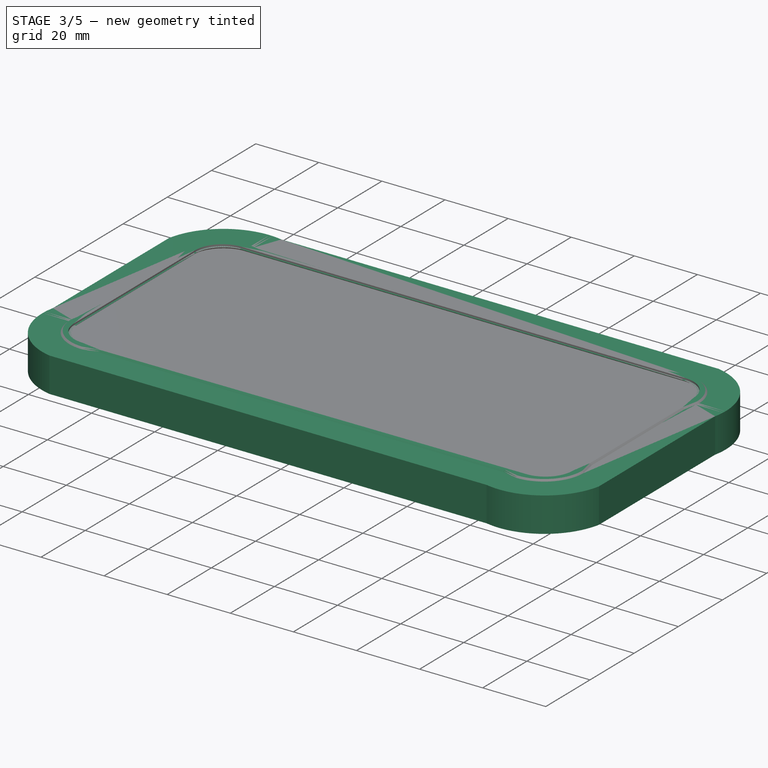
[diagram: stage 3 of 5 — iso view after this stage's code; geometry added in this stage tinted green]
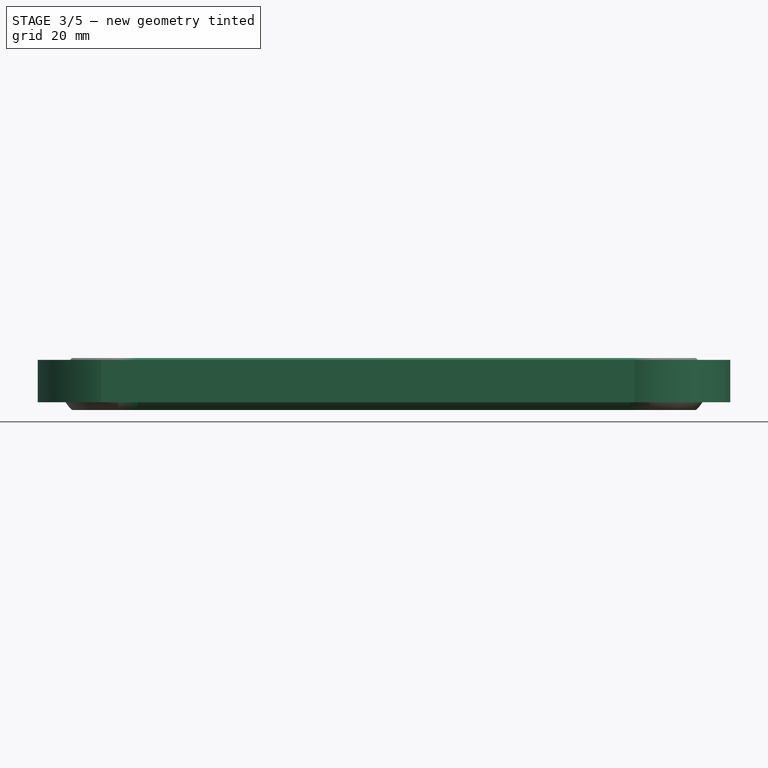
[diagram: stage 3 of 5 — front view after this stage's code; geometry added in this stage tinted green]
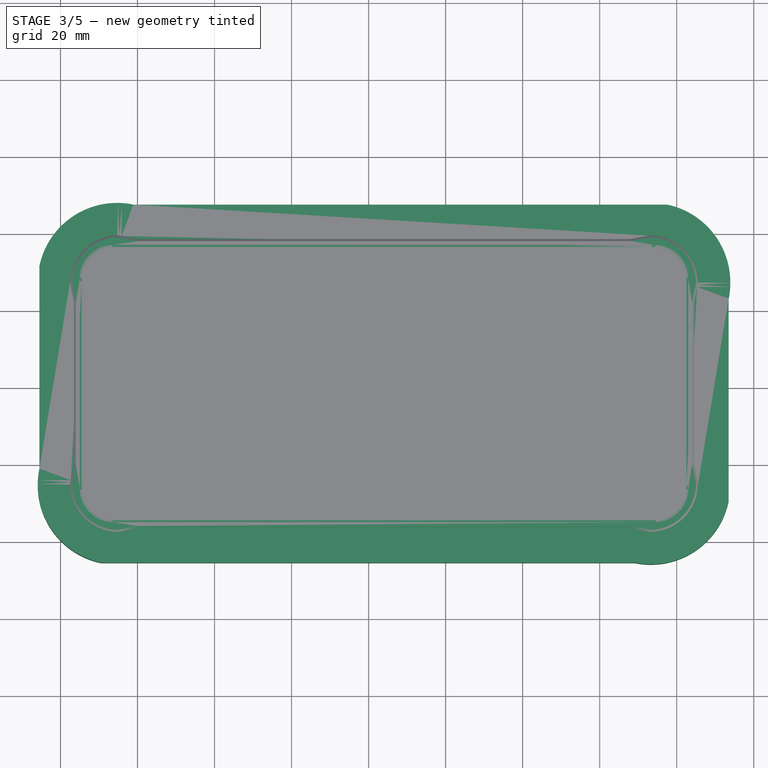
[diagram: stage 3 of 5 — top view after this stage's code; geometry added in this stage tinted green]
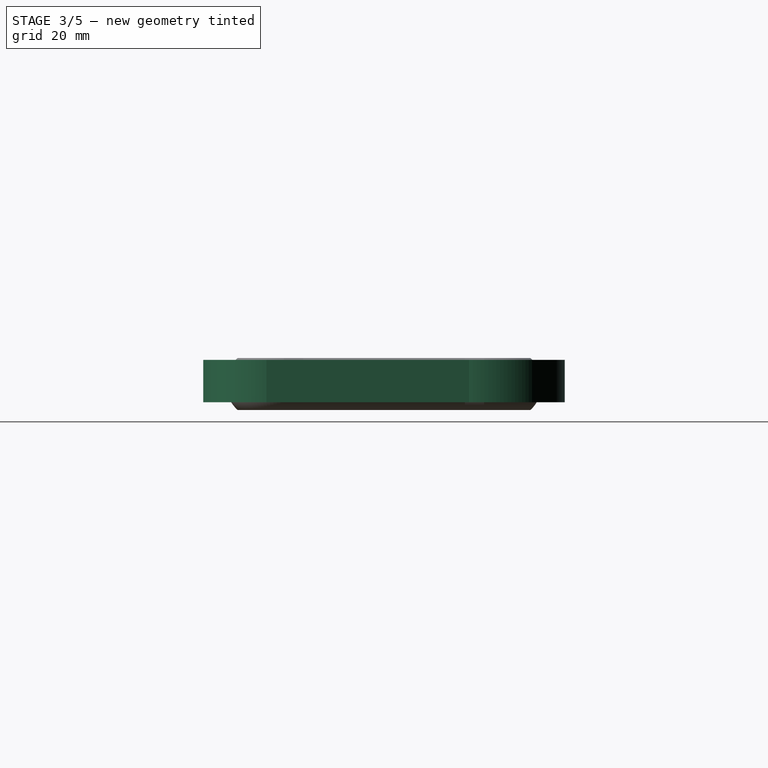
[diagram: stage 3 of 5 — right view after this stage's code; geometry added in this stage tinted green]
FEATURE [Sketcher::SketchObject] Sketch  label="sketch_edge_start_left_lower"
  AttachmentOffset = pos=(0,0,-20) rot=(0,0,1;0rad)
  FullyConstrained = true
  MapMode = 5
  Placement = pos=(148,0,0) rot=(0.57735,0.57735,0.57735;2.0944rad)
  Support = -> [Box]
  expr: Constraints[8] = <<dimensions>>.phone_edge_thickness
  expr: Constraints[9] = <<dimensions>>.phone_edge_thickness
  expr: Constraints[10] = <<dimensions>>.case_height
  expr: .AttachmentOffset.Base.z = -1 * (<<dimensions>>.bumper_length + <<dimensions>>.bumper_fadeout)
  expr: Constraints[12] = <<dimensions>>.case_thickness_bumper
  expr: Constraints[20] = <<dimensions>>.case_thickness_bumper
  sketch-geometry (7):
    g0: LineSegment StartX=1 StartY=13.5 StartZ=0 EndX=1 EndY=0 EndZ=0
    g1: LineSegment StartX=1 StartY=0 StartZ=0 EndX=4 EndY=0 EndZ=0
    g2: LineSegment StartX=1 StartY=13.5 StartZ=0 EndX=4 EndY=13.5 EndZ=0
    g3: ArcOfCircle CenterX=10.0937 CenterY=6.75 CenterZ=0 NormalX=0 NormalY=0 NormalZ=1 AngleXU=0 Radius=9.09375 StartAngle=2.30514 EndAngle=3.97804
    g4: LineSegment StartX=1 StartY=13.5 StartZ=0 EndX=0 EndY=13.5 EndZ=0
    g5: LineSegment StartX=0 StartY=13.5 StartZ=0 EndX=0 EndY=0 EndZ=0
    g6: LineSegment StartX=0 StartY=0 StartZ=0 EndX=1 EndY=0 EndZ=0
  constraints (21):
    c: Vertical(g0)
    c: Coincident(g1,g0)
    c: Horizontal(g1)
    c: Coincident(g2,g0)
    c: Horizontal(g2)
    c: Coincident(g3,g2)
    c: Coincident(g3,g1)
    c: Tangent(g3,g0)
    c: Distance(g2) = 3
    c: Distance(g1) = 3
    c: Distance(g0) = 13.5
    c: DistanceY(g0) = 0
    c: DistanceX(g0) = 1
    c: Coincident(g4,g0)
    c: Horizontal(g4)
    c: Coincident(g5,g4)
    c: Vertical(g5)
    c: Coincident(g6,g5)
    c: Coincident(g6,g0)
    c: Parallel(g4,g6)
    c: Distance(g4) = 1
FEATURE [Sketcher::SketchObject] Sketch001  label="sketch_edge_start_left_upper"
  AttachmentOffset = pos=(0,0,-20) rot=(0,0,1;0rad)
  FullyConstrained = true
  MapMode = 5
  Placement = pos=(20,0,0) rot=(0.57735,-0.57735,-0.57735;2.0944rad)
  Support = -> [Box]
  expr: Constraints[15] = <<dimensions>>.phone_edge_thickness
  expr: Constraints[16] = <<dimensions>>.phone_edge_thickness
  expr: Constraints[17] = <<dimensions>>.case_thickness_bumper
  expr: Constraints[18] = <<dimensions>>.case_height
  expr: .AttachmentOffset.Base.z = -1 * (<<dimensions>>.bumper_length + <<dimensions>>.bumper_fadeout)
  sketch-geometry (7):
    g0: LineSegment StartX=0 StartY=13.5 StartZ=0 EndX=-1 EndY=13.5 EndZ=0
    g1: LineSegment StartX=-1 StartY=13.5 StartZ=0 EndX=-1 EndY=0 EndZ=0
    g2: LineSegment StartX=-1 StartY=0 StartZ=0 EndX=0 EndY=0 EndZ=0
    g3: LineSegment StartX=0 StartY=0 StartZ=0 EndX=0 EndY=13.5 EndZ=0
    g4: LineSegment StartX=-1 StartY=13.5 StartZ=0 EndX=-4 EndY=13.5 EndZ=0
    g5: LineSegment StartX=-1 StartY=0 StartZ=0 EndX=-4 EndY=0 EndZ=0
    g6: ArcOfCircle CenterX=-10.0937 CenterY=6.75 CenterZ=0 NormalX=0 NormalY=0 NormalZ=1 AngleXU=0 Radius=9.09375 StartAngle=5.44674 EndAngle=7.11963
  constraints (21):
    c: Horizontal(g0)
    c: Coincident(g1,g0)
    c: Vertical(g1)
    c: Coincident(g2,g1)
    c: Horizontal(g2)
    c: Coincident(g3,g2)
    c: Coincident(g3,g0)
    c: Vertical(g3)
    c: Coincident(g4,g0)
    c: Horizontal(g4)
    c: Coincident(g5,g1)
    c: Horizontal(g5)
    c: Coincident(g6,g4)
    c: Coincident(g6,g5)
    c: Tangent(g6,g1)
    c: Distance(g4) = 3
    c: Distance(g5) = 3
    c: Distance(g0) = 1
    c: Distance(g1) = 13.5
    c: DistanceX(g2) = 0
    c: DistanceY(g2) = 0
FEATURE [Sketcher::SketchObject] Sketch002  label="sketch_bumper_start_left_lower"
  AttachmentOffset = pos=(0,0,-15) rot=(0,0,1;0rad)
  FullyConstrained = true
  MapMode = 5
  Placement = pos=(153,0,0) rot=(0.57735,0.57735,0.57735;2.0944rad)
  Support = -> [Box]
  expr: .AttachmentOffset.Base.z = -1 * <<dimensions>>.bumper_length
  expr: Constraints[10] = <<dimensions>>.case_height
  expr: Constraints[9] = <<dimensions>>.phone_edge_thickness
  expr: Constraints[8] = <<dimensions>>.phone_edge_thickness
  sketch-geometry (4):
    g0: LineSegment StartX=0 StartY=13.5 StartZ=0 EndX=0 EndY=0 EndZ=0
    g1: LineSegment StartX=0 StartY=0 StartZ=0 EndX=3 EndY=0 EndZ=0
    g2: LineSegment StartX=0 StartY=13.5 StartZ=0 EndX=3 EndY=13.5 EndZ=0
    g3: ArcOfCircle CenterX=9.09375 CenterY=6.75 CenterZ=0 NormalX=0 NormalY=0 NormalZ=1 AngleXU=0 Radius=9.09375 StartAngle=2.30514 EndAngle=3.97804
  constraints (13):
    c: Vertical(g0)
    c: Coincident(g1,g0)
    c: Horizontal(g1)
    c: Coincident(g2,g0)
    c: Horizontal(g2)
    c: Coincident(g3,g2)
    c: Coincident(g3,g1)
    c: Tangent(g3,g0)
    c: Distance(g2) = 3
    c: Distance(g1) = 3
    c: Distance(g0) = 13.5
    c: DistanceY(g0) = 0
    c: DistanceX(g0) = 0
FEATURE [Sketcher::SketchObject] Sketch003  label="sketch_bumper_start_left_upper"
  AttachmentOffset = pos=(0,0,-15) rot=(0,0,1;0rad)
  FullyConstrained = true
  MapMode = 5
  Placement = pos=(15,0,0) rot=(0.57735,-0.57735,-0.57735;2.0944rad)
  Support = -> [Box]
  expr: Constraints[8] = <<dimensions>>.case_height
  expr: Constraints[7] = <<dimensions>>.phone_edge_thickness
  expr: .AttachmentOffset.Base.z = -1 * <<dimensions>>.bumper_length
  expr: Constraints[6] = <<dimensions>>.phone_edge_thickness
  sketch-geometry (4):
    g0: LineSegment StartX=0 StartY=13.5 StartZ=0 EndX=0 EndY=0 EndZ=0
    g1: LineSegment StartX=0 StartY=13.5 StartZ=0 EndX=-3 EndY=13.5 EndZ=0
    g2: LineSegment StartX=0 StartY=0 StartZ=0 EndX=-3 EndY=0 EndZ=0
    g3: ArcOfCircle CenterX=-9.09375 CenterY=6.75 CenterZ=0 NormalX=0 NormalY=0 NormalZ=1 AngleXU=0 Radius=9.09375 StartAngle=5.44674 EndAngle=7.11963
  constraints (13):
    c: Vertical(g0)
    c: Horizontal(g1)
    c: Coincident(g2,g0)
    c: Horizontal(g2)
    c: Coincident(g3,g1)
    c: Coincident(g3,g2)
    c: Distance(g1) = 3
    c: Distance(g2) = 3
    c: Distance(g0) = 13.5
    c: DistanceX(g0) = 0
    c: DistanceY(g0) = 0
    c: Coincident(g1,g0)
    c: Tangent(g3,g0)
FEATURE [Part::Loft] Loft
  Closed = false
  MaxDegree = 5
  Ruled = false
  Sections = -> [Sketch002,Sketch]
  Solid = true
FEATURE [Part::Loft] Loft001
  Closed = false
  MaxDegree = 5
  Ruled = false
  Sections = -> [Sketch003,Sketch001]
  Solid = true
FEATURE [Part::Loft] Loft002
  Closed = false
  MaxDegree = 5
  Ruled = false
  Sections = -> [Sketch,Sketch001]
  Solid = true
FEATURE [Part::Loft] Loft003
  Closed = false
  MaxDegree = 5
  Ruled = false
  Sections = -> [Sketch002,Sketch003]
  Solid = true
FEATURE [Part::Fuse] Fusion
  Base = -> Loft002
  Tool = -> Loft003
FEATURE [Part::Fuse] Fusion001
  Base = -> Loft001
  Tool = -> Fusion
FEATURE [Part::Fuse] Fusion002  label="edge_left"
  Base = -> Loft
  Tool = -> Fusion001
FEATURE [Part::Fuse] Fusion017  label="edges"
  Base = -> Fusion002
  Tool = -> Fusion016
FEATURE [Part::Cut] Cut  label="case_without_edges"
  Base = -> Box
  Tool = -> Fusion017
FEATURE [Part::Box] Box001  label="phone_base"
  AttacherType = Attacher::AttachEngine3D
  Height = 11
  Length = 162
  Placement = pos=(3,3,2) rot=(0,0,1;0rad)
  Width = 76
  expr: Height = <<dimensions>>.phone_height
  expr: Width = <<dimensions>>.phone_width
  expr: Length = <<dimensions>>.phone_length
  expr: .Placement.Base.z = <<dimensions>>.case_thickness_back
  expr: .Placement.Base.x = <<dimensions>>.case_thickness_bumper + <<dimensions>>.case_thickness_side
  expr: .Placement.Base.y = <<dimensions>>.case_thickness_bumper + <<dimensions>>.case_thickness_side
FEATURE [Sketcher::SketchObject] Sketch029  label="phone_edges_spline"
  FullyConstrained = true
  MapMode = 5
  Placement = pos=(3,3,2) rot=(1,0,0;3.14159rad)
  Support = -> [Box001]
  expr: Constraints[12] = -1 * <<dimensions>>.phone_edge_thickness
  expr: Constraints[13] = -1 * <<dimensions>>.phone_width + <<dimensions>>.phone_edge_thickness
  expr: Constraints[14] = <<dimensions>>.phone_edge_thickness
  expr: Constraints[17] = -1 * <<dimensions>>.phone_width + <<dimensions>>.phone_edge_thickness + <<dimensions>>.phone_edge_radius
  expr: Constraints[15] = <<dimensions>>.phone_length - <<dimensions>>.phone_edge_thickness
  expr: Constraints[16] = <<dimensions>>.phone_edge_thickness + <<dimensions>>.phone_edge_radius
  expr: Constraints[18] = <<dimensions>>.phone_edge_thickness + <<dimensions>>.phone_edge_radius
  expr: Constraints[19] = <<dimensions>>.phone_length - <<dimensions>>.phone_edge_thickness - <<dimensions>>.phone_edge_radius
  sketch-geometry (8):
    g0: LineSegment StartX=11.7 StartY=-73 StartZ=0 EndX=150.3 EndY=-73 EndZ=0
    g1: LineSegment StartX=159 StartY=-64.3 StartZ=0 EndX=159 EndY=-11.7 EndZ=0
    g2: LineSegment StartX=150.3 StartY=-3 StartZ=0 EndX=11.7 EndY=-3 EndZ=0
    g3: LineSegment StartX=3 StartY=-11.7 StartZ=0 EndX=3 EndY=-64.3 EndZ=0
    g4: ArcOfCircle CenterX=11.7 CenterY=-11.7 CenterZ=0 NormalX=0 NormalY=0 NormalZ=1 AngleXU=0 Radius=8.7 StartAngle=1.5708 EndAngle=3.14159
    g5: ArcOfCircle CenterX=11.7 CenterY=-64.3 CenterZ=0 NormalX=0 NormalY=0 NormalZ=1 AngleXU=0 Radius=8.7 StartAngle=3.14159 EndAngle=4.71239
    g6: ArcOfCircle CenterX=150.3 CenterY=-11.7 CenterZ=0 NormalX=0 NormalY=0 NormalZ=1 AngleXU=0 Radius=8.7 StartAngle=0 EndAngle=1.5708
    g7: ArcOfCircle CenterX=150.3 CenterY=-64.3 CenterZ=0 NormalX=0 NormalY=0 NormalZ=1 AngleXU=0 Radius=8.7 StartAngle=4.71239 EndAngle=6.28319
  constraints (20):
    c: Horizontal(g0)
    c: Vertical(g1)
    c: Horizontal(g2)
    c: Vertical(g3)
    c: Tangent(g4,g2) = -1.5708
    c: Tangent(g4,g3) = -1.5708
    c: Tangent(g5,g3) = -1.5708
    c: Tangent(g5,g0) = -1.5708
    c: Tangent(g7,g0) = -1.5708
    c: Tangent(g7,g1) = -1.5708
    c: Tangent(g6,g1) = -1.5708
    c: Tangent(g6,g2) = -1.5708
    c: DistanceY(g2) = -3
    c: DistanceY(g0) = -73
    c: DistanceX(g3) = 3
    c: DistanceX(g1) = 159
    c: DistanceX(g0) = 11.7
    c: DistanceY(g1) = -64.3
    c: DistanceX(g2) = 11.7
    c: DistanceX(g2) = 150.3
FEATURE [Part::Sweep] Sweep001  label="phone_edges"
  Frenet = false
  Sections = -> [Sketch024]
  Solid = true
  Spine = -> Sketch029 [Edge8,Edge7,Edge6,Edge5,Edge4,Edge3,Edge2,Edge1]
  Transition = 1
FEATURE [Part::Cut] Cut004  label="case_without_corners_and_edges"
  Base = -> Cut
  Tool = -> Sweep
FEATURE [Part::Cut] Cut005  label="case_without_display"
  Base = -> Cut004
  Tool = -> Extrude009
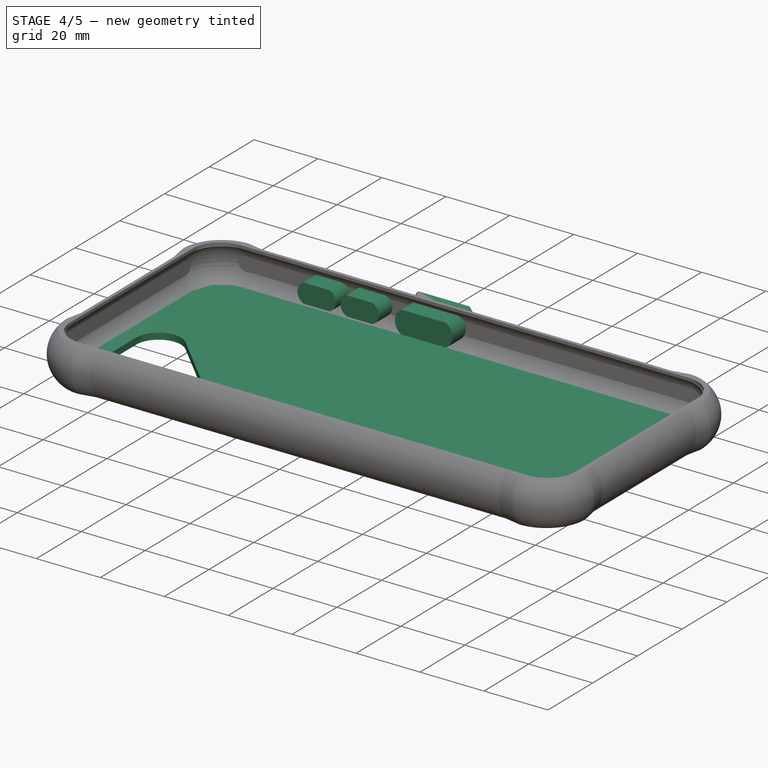
[diagram: stage 4 of 5 — iso view after this stage's code; geometry added in this stage tinted green]
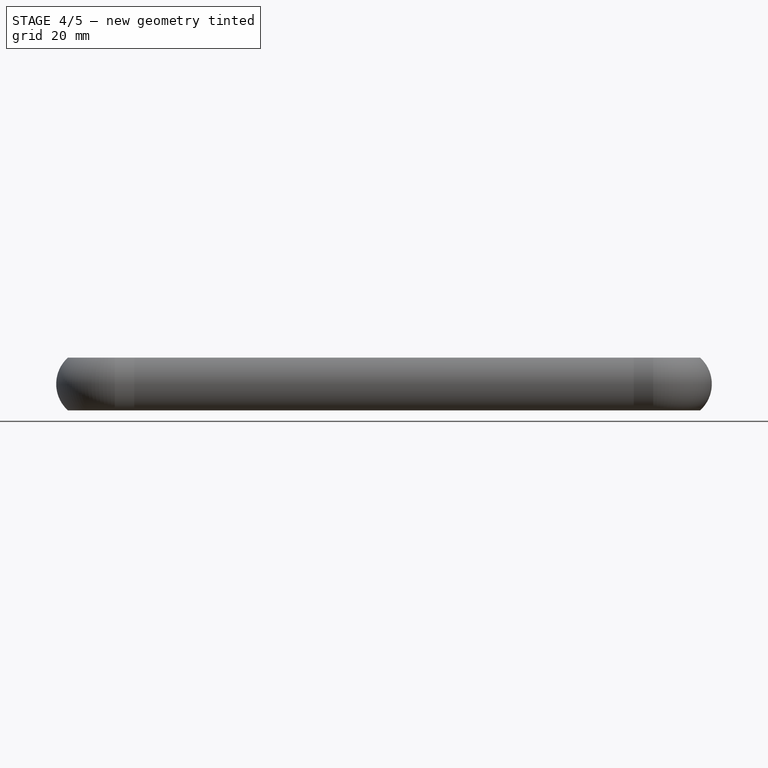
[diagram: stage 4 of 5 — front view after this stage's code; geometry added in this stage tinted green]
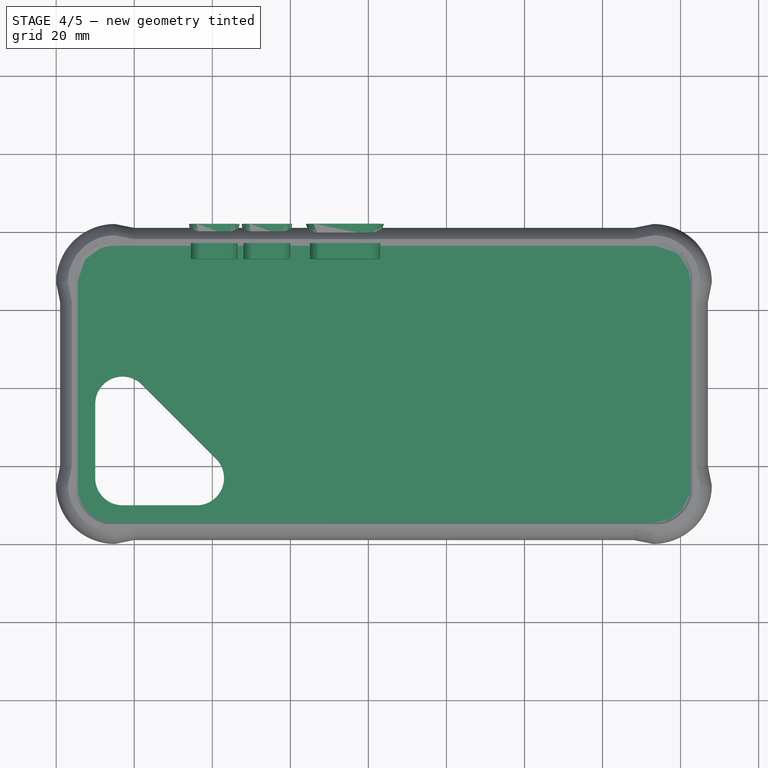
[diagram: stage 4 of 5 — top view after this stage's code; geometry added in this stage tinted green]
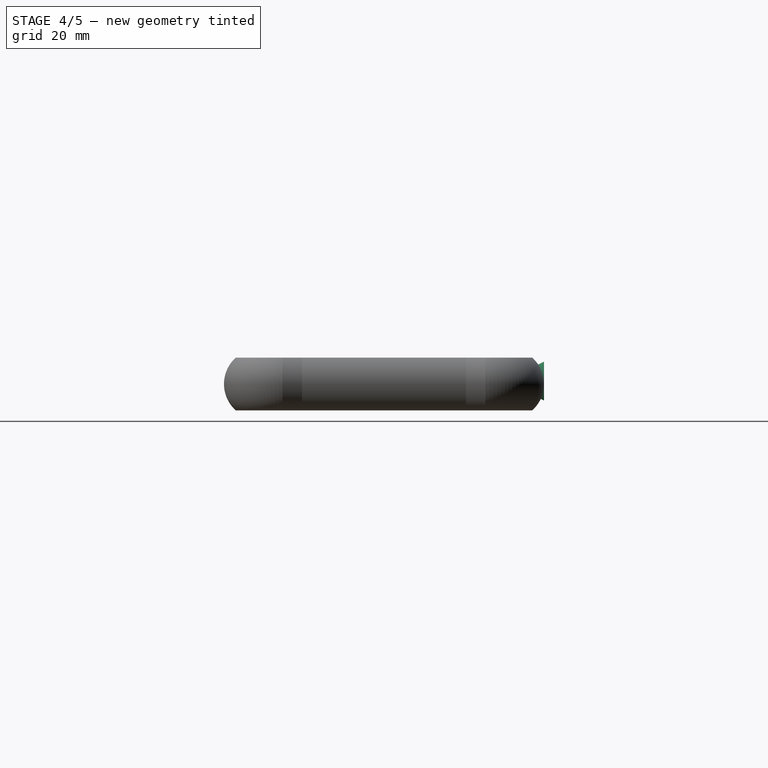
[diagram: stage 4 of 5 — right view after this stage's code; geometry added in this stage tinted green]
FEATURE [Part::Cut] Cut003  label="phone_full"
  Base = -> Box001
  Tool = -> Sweep001
FEATURE [Sketcher::SketchObject] Sketch035  label="sketch_lock_button"
  AttachmentOffset = pos=(0,0,-3) rot=(0,0,1;0rad)
  FullyConstrained = true
  MapMode = 5
  Placement = pos=(0,79,7e-16) rot=(0,0.707107,0.707107;3.14159rad)
  Support = -> [Box]
  expr: Constraints[28] = <<dimensions>>.lock_button_edge_thickness
  expr: Constraints[18] = <<dimensions>>.lock_button_edge_thickness
  expr: Constraints[11] = <<dimensions>>.lock_button_height
  expr: Constraints[9] = <<dimensions>>.case_length / -2 + <<dimensions>>.lock_button_center_offset - <<dimensions>>.lock_button_width / 2
  expr: Constraints[8] = <<dimensions>>.lock_button_height_offset + <<dimensions>>.case_thickness_back
  expr: .AttachmentOffset.Base.z = -1 * (<<dimensions>>.case_thickness_side + <<dimensions>>.case_thickness_bumper)
  expr: Constraints[7] = <<dimensions>>.lock_button_width
  expr: Constraints[10] = <<dimensions>>.case_length / -2 + <<dimensions>>.lock_button_center_offset - <<dimensions>>.lock_button_width / 2
  expr: Constraints[5] = <<dimensions>>.lock_button_width
  sketch-geometry (10):
    g0: LineSegment StartX=-81 StartY=11 StartZ=0 EndX=-67 EndY=11 EndZ=0
    g1: LineSegment StartX=-81 StartY=4 StartZ=0 EndX=-67 EndY=4 EndZ=0
    g2: ArcOfCircle CenterX=-69.0625 CenterY=7.5 CenterZ=0 NormalX=0 NormalY=0 NormalZ=1 AngleXU=0 Radius=4.0625 StartAngle=5.24489 EndAngle=7.32148
    g3: ArcOfCircle CenterX=-78.9375 CenterY=7.5 CenterZ=0 NormalX=0 NormalY=0 NormalZ=1 AngleXU=0 Radius=4.0625 StartAngle=2.1033 EndAngle=4.17988
    g4: LineSegment StartX=-81 StartY=11 StartZ=0 EndX=-83 EndY=11 EndZ=0
    g5: LineSegment StartX=-83 StartY=11 StartZ=0 EndX=-83 EndY=4 EndZ=0
    g6: LineSegment StartX=-83 StartY=4 StartZ=0 EndX=-81 EndY=4 EndZ=0
    g7: LineSegment StartX=-67 StartY=11 StartZ=0 EndX=-65 EndY=11 EndZ=0
    g8: LineSegment StartX=-65 StartY=11 StartZ=0 EndX=-65 EndY=4 EndZ=0
    g9: LineSegment StartX=-65 StartY=4 StartZ=0 EndX=-67 EndY=4 EndZ=0
  constraints (30):
    c: Horizontal(g0)
    c: Coincident(g2,g0)
    c: Coincident(g2,g1)
    c: Coincident(g3,g0)
    c: Coincident(g3,g1)
    c: Distance(g0) = 14
    c: Parallel(g0,g1)
    c: Distance(g1) = 14
    c: DistanceY(g3) = 7.5
    c: DistanceX(g1) = -81
    c: DistanceX(g0) = -81
    c: DistanceY(g1,g0) = 7
    c: Coincident(g4,g0)
    c: Coincident(g5,g4)
    c: Vertical(g5)
    c: Coincident(g6,g5)
    c: Coincident(g6,g1)
    c: Parallel(g4,g6)
    c: Distance(g4) = 2
    c: Parallel(g4,g1)
    c: Tangent(g3,g5)
    c: Coincident(g7,g0)
    c: Horizontal(g7)
    c: Coincident(g8,g7)
    c: Vertical(g8)
    c: Coincident(g9,g8)
    c: Coincident(g9,g1)
    c: Parallel(g7,g9)
    c: Distance(g7) = 2
    c: Tangent(g8,g2)
FEATURE [Sketcher::SketchObject] Sketch036  label="sketch_lock_button_outer"
  FullyConstrained = true
  MapMode = 5
  Placement = pos=(0,82,0) rot=(0,0.707107,0.707107;3.14159rad)
  Support = -> [Box]
  expr: Constraints[5] = <<dimensions>>.lock_button_width_outer
  expr: Constraints[10] = <<dimensions>>.case_length / -2 + <<dimensions>>.lock_button_center_offset - <<dimensions>>.lock_button_width_outer / 2
  expr: Constraints[7] = <<dimensions>>.lock_button_width_outer
  expr: Constraints[8] = <<dimensions>>.lock_button_height_offset + <<dimensions>>.case_thickness_back
  expr: Constraints[9] = <<dimensions>>.case_length / -2 + <<dimensions>>.lock_button_center_offset - <<dimensions>>.lock_button_width_outer / 2
  expr: Constraints[11] = <<dimensions>>.lock_button_height_outer
  expr: Constraints[18] = <<dimensions>>.lock_button_edge_thickness
  expr: Constraints[28] = <<dimensions>>.lock_button_edge_thickness
  sketch-geometry (10):
    g0: LineSegment StartX=-82 StartY=12.5 StartZ=0 EndX=-66 EndY=12.5 EndZ=0
    g1: LineSegment StartX=-82 StartY=2.5 StartZ=0 EndX=-66 EndY=2.5 EndZ=0
    g2: ArcOfCircle CenterX=-71.25 CenterY=7.5 CenterZ=0 NormalX=0 NormalY=0 NormalZ=1 AngleXU=0 Radius=7.25 StartAngle=5.52217 EndAngle=7.0442
    g3: ArcOfCircle CenterX=-76.75 CenterY=7.5 CenterZ=0 NormalX=0 NormalY=0 NormalZ=1 AngleXU=0 Radius=7.25 StartAngle=2.38058 EndAngle=3.90261
    g4: LineSegment StartX=-82 StartY=12.5 StartZ=0 EndX=-84 EndY=12.5 EndZ=0
    g5: LineSegment StartX=-84 StartY=12.5 StartZ=0 EndX=-84 EndY=2.5 EndZ=0
    g6: LineSegment StartX=-84 StartY=2.5 StartZ=0 EndX=-82 EndY=2.5 EndZ=0
    g7: LineSegment StartX=-66 StartY=12.5 StartZ=0 EndX=-64 EndY=12.5 EndZ=0
    g8: LineSegment StartX=-64 StartY=12.5 StartZ=0 EndX=-64 EndY=2.5 EndZ=0
    g9: LineSegment StartX=-64 StartY=2.5 StartZ=0 EndX=-66 EndY=2.5 EndZ=0
  constraints (30):
    c: Horizontal(g0)
    c: Coincident(g2,g0)
    c: Coincident(g2,g1)
    c: Coincident(g3,g0)
    c: Coincident(g3,g1)
    c: Distance(g0) = 16
    c: Parallel(g0,g1)
    c: Distance(g1) = 16
    c: DistanceY(g3) = 7.5
    c: DistanceX(g1) = -82
    c: DistanceX(g0) = -82
    c: DistanceY(g1,g0) = 10
    c: Coincident(g4,g0)
    c: Coincident(g5,g4)
    c: Vertical(g5)
    c: Coincident(g6,g5)
    c: Coincident(g6,g1)
    c: Parallel(g4,g6)
    c: Distance(g4) = 2
    c: Parallel(g4,g1)
    c: Tangent(g3,g5)
    c: Coincident(g7,g0)
    c: Horizontal(g7)
    c: Coincident(g8,g7)
    c: Vertical(g8)
    c: Coincident(g9,g8)
    c: Coincident(g9,g1)
    c: Parallel(g7,g9)
    c: Distance(g7) = 2
    c: Tangent(g8,g2)
FEATURE [Part::Extrusion] Extrude005
  Base = -> Sketch035
  Dir = (0,1,-2e-16)
  DirMode = 2
  FaceMakerClass = Part::FaceMakerBullseye
  LengthFwd = 0
  LengthRev = 6
  Solid = true
  Symmetric = false
  expr: LengthRev = <<dimensions>>.side_hole_depth
FEATURE [Part::Loft] Loft020
  Closed = false
  MaxDegree = 5
  Ruled = false
  Sections = -> [Sketch035,Sketch036]
  Solid = true
FEATURE [Sketcher::SketchObject] Sketch037  label="sketch_volume_down_button"
  AttachmentOffset = pos=(0,0,-3) rot=(0,0,1;0rad)
  FullyConstrained = true
  MapMode = 5
  Placement = pos=(0,79,7e-16) rot=(0,0.707107,0.707107;3.14159rad)
  Support = -> [Box]
  expr: Constraints[5] = <<dimensions>>.volume_button_width
  expr: Constraints[10] = <<dimensions>>.case_length / -2 + <<dimensions>>.volume_down_center_offset - <<dimensions>>.volume_button_width / 2
  expr: Constraints[7] = <<dimensions>>.volume_button_width
  expr: .AttachmentOffset.Base.z = -1 * (<<dimensions>>.case_thickness_side + <<dimensions>>.case_thickness_bumper)
  expr: Constraints[8] = <<dimensions>>.volume_button_height_offset + <<dimensions>>.case_thickness_back
  expr: Constraints[9] = <<dimensions>>.case_length / -2 + <<dimensions>>.volume_down_center_offset - <<dimensions>>.volume_button_width / 2
  expr: Constraints[11] = <<dimensions>>.volume_button_height
  expr: Constraints[18] = <<dimensions>>.volume_button_edge_thickness
  expr: Constraints[28] = <<dimensions>>.volume_button_edge_thickness
  sketch-geometry (10):
    g0: LineSegment StartX=-58 StartY=10.5 StartZ=0 EndX=-50 EndY=10.5 EndZ=0
    g1: LineSegment StartX=-58 StartY=4.5 StartZ=0 EndX=-50 EndY=4.5 EndZ=0
    g2: ArcOfCircle CenterX=-51.25 CenterY=7.5 CenterZ=0 NormalX=0 NormalY=0 NormalZ=1 AngleXU=0 Radius=3.25 StartAngle=5.10718 EndAngle=7.45919
    g3: ArcOfCircle CenterX=-56.75 CenterY=7.5 CenterZ=0 NormalX=0 NormalY=0 NormalZ=1 AngleXU=0 Radius=3.25 StartAngle=1.96559 EndAngle=4.3176
    g4: LineSegment StartX=-58 StartY=10.5 StartZ=0 EndX=-60 EndY=10.5 EndZ=0
    g5: LineSegment StartX=-60 StartY=10.5 StartZ=0 EndX=-60 EndY=4.5 EndZ=0
    g6: LineSegment StartX=-60 StartY=4.5 StartZ=0 EndX=-58 EndY=4.5 EndZ=0
    g7: LineSegment StartX=-50 StartY=10.5 StartZ=0 EndX=-48 EndY=10.5 EndZ=0
    g8: LineSegment StartX=-48 StartY=10.5 StartZ=0 EndX=-48 EndY=4.5 EndZ=0
    g9: LineSegment StartX=-48 StartY=4.5 StartZ=0 EndX=-50 EndY=4.5 EndZ=0
  constraints (30):
    c: Horizontal(g0)
    c: Coincident(g2,g0)
    c: Coincident(g2,g1)
    c: Coincident(g3,g0)
    c: Coincident(g3,g1)
    c: Distance(g0) = 8
    c: Parallel(g0,g1)
    c: Distance(g1) = 8
    c: DistanceY(g3) = 7.5
    c: DistanceX(g1) = -58
    c: DistanceX(g0) = -58
    c: DistanceY(g1,g0) = 6
    c: Coincident(g4,g0)
    c: Coincident(g5,g4)
    c: Vertical(g5)
    c: Coincident(g6,g5)
    c: Coincident(g6,g1)
    c: Parallel(g4,g6)
    c: Distance(g4) = 2
    c: Parallel(g4,g1)
    c: Tangent(g3,g5)
    c: Coincident(g7,g0)
    c: Horizontal(g7)
    c: Coincident(g8,g7)
    c: Vertical(g8)
    c: Coincident(g9,g8)
    c: Coincident(g9,g1)
    c: Parallel(g7,g9)
    c: Distance(g7) = 2
    c: Tangent(g8,g2)
FEATURE [Sketcher::SketchObject] Sketch038  label="sketch_volume_down_button_outer"
  FullyConstrained = true
  MapMode = 5
  Placement = pos=(0,82,0) rot=(0,0.707107,0.707107;3.14159rad)
  Support = -> [Box]
  expr: Constraints[28] = <<dimensions>>.volume_button_edge_thickness
  expr: Constraints[18] = <<dimensions>>.volume_button_edge_thickness
  expr: Constraints[11] = <<dimensions>>.volume_button_height_outer
  expr: Constraints[9] = <<dimensions>>.case_length / -2 + <<dimensions>>.volume_down_center_offset - <<dimensions>>.volume_button_width_outer / 2
  expr: Constraints[8] = <<dimensions>>.volume_button_height_offset + <<dimensions>>.case_thickness_back
  expr: Constraints[7] = <<dimensions>>.volume_button_width_outer
  expr: Constraints[10] = <<dimensions>>.case_length / -2 + <<dimensions>>.volume_down_center_offset - <<dimensions>>.volume_button_width_outer / 2
  expr: Constraints[5] = <<dimensions>>.volume_button_width_outer
  sketch-geometry (10):
    g0: LineSegment StartX=-58.5 StartY=11.25 StartZ=0 EndX=-49.5 EndY=11.25 EndZ=0
    g1: LineSegment StartX=-58.5 StartY=3.75 StartZ=0 EndX=-49.5 EndY=3.75 EndZ=0
    g2: ArcOfCircle CenterX=-52.0156 CenterY=7.5 CenterZ=0 NormalX=0 NormalY=0 NormalZ=1 AngleXU=0 Radius=4.51562 StartAngle=5.30327 EndAngle=7.2631
    g3: ArcOfCircle CenterX=-55.9844 CenterY=7.5 CenterZ=0 NormalX=0 NormalY=0 NormalZ=1 AngleXU=0 Radius=4.51562 StartAngle=2.16168 EndAngle=4.12151
    g4: LineSegment StartX=-58.5 StartY=11.25 StartZ=0 EndX=-60.5 EndY=11.25 EndZ=0
    g5: LineSegment StartX=-60.5 StartY=11.25 StartZ=0 EndX=-60.5 EndY=3.75 EndZ=0
    g6: LineSegment StartX=-60.5 StartY=3.75 StartZ=0 EndX=-58.5 EndY=3.75 EndZ=0
    g7: LineSegment StartX=-49.5 StartY=11.25 StartZ=0 EndX=-47.5 EndY=11.25 EndZ=0
    g8: LineSegment StartX=-47.5 StartY=11.25 StartZ=0 EndX=-47.5 EndY=3.75 EndZ=0
    g9: LineSegment StartX=-47.5 StartY=3.75 StartZ=0 EndX=-49.5 EndY=3.75 EndZ=0
  constraints (30):
    c: Horizontal(g0)
    c: Coincident(g2,g0)
    c: Coincident(g2,g1)
    c: Coincident(g3,g0)
    c: Coincident(g3,g1)
    c: Distance(g0) = 9
    c: Parallel(g0,g1)
    c: Distance(g1) = 9
    c: DistanceY(g3) = 7.5
    c: DistanceX(g1) = -58.5
    c: DistanceX(g0) = -58.5
    c: DistanceY(g1,g0) = 7.5
    c: Coincident(g4,g0)
    c: Coincident(g5,g4)
    c: Vertical(g5)
    c: Coincident(g6,g5)
    c: Coincident(g6,g1)
    c: Parallel(g4,g6)
    c: Distance(g4) = 2
    c: Parallel(g4,g1)
    c: Tangent(g3,g5)
    c: Coincident(g7,g0)
    c: Horizontal(g7)
    c: Coincident(g8,g7)
    c: Vertical(g8)
    c: Coincident(g9,g8)
    c: Coincident(g9,g1)
    c: Parallel(g7,g9)
    c: Distance(g7) = 2
    c: Tangent(g8,g2)
FEATURE [Part::Loft] Loft021
  Closed = false
  MaxDegree = 5
  Ruled = false
  Sections = -> [Sketch037,Sketch038]
  Solid = true
FEATURE [Part::Extrusion] Extrude006
  Base = -> Sketch037
  Dir = (0,1,-2e-16)
  DirMode = 2
  FaceMakerClass = Part::FaceMakerBullseye
  LengthFwd = 0
  LengthRev = 6
  Solid = true
  Symmetric = false
  expr: LengthRev = <<dimensions>>.side_hole_depth
FEATURE [Part::Fuse] Fusion027  label="volume_down_button"
  Base = -> Extrude006
  Tool = -> Loft021
FEATURE [Sketcher::SketchObject] Sketch039  label="sketch_volume_down_button_outer001"
  FullyConstrained = true
  MapMode = 5
  Placement = pos=(0,82,0) rot=(0,0.707107,0.707107;3.14159rad)
  Support = -> [Box]
  expr: Constraints[5] = <<dimensions>>.volume_button_width_outer
  expr: Constraints[10] = <<dimensions>>.case_length / -2 + <<dimensions>>.volume_up_button_center_offset - <<dimensions>>.volume_button_width_outer / 2
  expr: Constraints[7] = <<dimensions>>.volume_button_width_outer
  expr: Constraints[8] = <<dimensions>>.volume_button_height_offset + <<dimensions>>.case_thickness_back
  expr: Constraints[9] = <<dimensions>>.case_length / -2 + <<dimensions>>.volume_up_button_center_offset - <<dimensions>>.volume_button_width_outer / 2
  expr: Constraints[11] = <<dimensions>>.volume_button_height_outer
  expr: Constraints[18] = <<dimensions>>.volume_button_edge_thickness
  expr: Constraints[28] = <<dimensions>>.volume_button_edge_thickness
  sketch-geometry (10):
    g0: LineSegment StartX=-45 StartY=11.25 StartZ=0 EndX=-36 EndY=11.25 EndZ=0
    g1: LineSegment StartX=-45 StartY=3.75 StartZ=0 EndX=-36 EndY=3.75 EndZ=0
    g2: ArcOfCircle CenterX=-38.5156 CenterY=7.5 CenterZ=0 NormalX=0 NormalY=0 NormalZ=1 AngleXU=0 Radius=4.51562 StartAngle=5.30327 EndAngle=7.2631
    g3: ArcOfCircle CenterX=-42.4844 CenterY=7.5 CenterZ=0 NormalX=0 NormalY=0 NormalZ=1 AngleXU=0 Radius=4.51562 StartAngle=2.16168 EndAngle=4.12151
    g4: LineSegment StartX=-45 StartY=11.25 StartZ=0 EndX=-47 EndY=11.25 EndZ=0
    g5: LineSegment StartX=-47 StartY=11.25 StartZ=0 EndX=-47 EndY=3.75 EndZ=0
    g6: LineSegment StartX=-47 StartY=3.75 StartZ=0 EndX=-45 EndY=3.75 EndZ=0
    g7: LineSegment StartX=-36 StartY=11.25 StartZ=0 EndX=-34 EndY=11.25 EndZ=0
    g8: LineSegment StartX=-34 StartY=11.25 StartZ=0 EndX=-34 EndY=3.75 EndZ=0
    g9: LineSegment StartX=-34 StartY=3.75 StartZ=0 EndX=-36 EndY=3.75 EndZ=0
  constraints (30):
    c: Horizontal(g0)
    c: Coincident(g2,g0)
    c: Coincident(g2,g1)
    c: Coincident(g3,g0)
    c: Coincident(g3,g1)
    c: Distance(g0) = 9
    c: Parallel(g0,g1)
    c: Distance(g1) = 9
    c: DistanceY(g3) = 7.5
    c: DistanceX(g1) = -45
    c: DistanceX(g0) = -45
    c: DistanceY(g1,g0) = 7.5
    c: Coincident(g4,g0)
    c: Coincident(g5,g4)
    c: Vertical(g5)
    c: Coincident(g6,g5)
    c: Coincident(g6,g1)
    c: Parallel(g4,g6)
    c: Distance(g4) = 2
    c: Parallel(g4,g1)
    c: Tangent(g3,g5)
    c: Coincident(g7,g0)
    c: Horizontal(g7)
    c: Coincident(g8,g7)
    c: Vertical(g8)
    c: Coincident(g9,g8)
    c: Coincident(g9,g1)
    c: Parallel(g7,g9)
    c: Distance(g7) = 2
    c: Tangent(g8,g2)
FEATURE [Sketcher::SketchObject] Sketch040  label="sketch_volume_up_button"
  AttachmentOffset = pos=(0,0,-3) rot=(0,0,1;0rad)
  FullyConstrained = true
  MapMode = 5
  Placement = pos=(0,79,7e-16) rot=(0,0.707107,0.707107;3.14159rad)
  Support = -> [Box]
  expr: Constraints[29] = <<dimensions>>.case_length / -2 + <<dimensions>>.volume_up_button_center_offset - <<dimensions>>.volume_button_width / 2
  expr: Constraints[27] = <<dimensions>>.volume_button_width
  expr: Constraints[28] = <<dimensions>>.case_length / -2 + <<dimensions>>.volume_up_button_center_offset - <<dimensions>>.volume_button_width / 2
  expr: Constraints[25] = <<dimensions>>.volume_button_edge_thickness
  expr: Constraints[15] = <<dimensions>>.volume_button_edge_thickness
  expr: Constraints[7] = <<dimensions>>.volume_button_height_offset + <<dimensions>>.case_thickness_back
  expr: .AttachmentOffset.Base.z = -1 * (<<dimensions>>.case_thickness_side + <<dimensions>>.case_thickness_bumper)
  expr: Constraints[8] = <<dimensions>>.volume_button_height
  expr: Constraints[5] = <<dimensions>>.volume_button_width
  sketch-geometry (10):
    g0: LineSegment StartX=-44.5 StartY=10.5 StartZ=0 EndX=-36.5 EndY=10.5 EndZ=0
    g1: LineSegment StartX=-44.5 StartY=4.5 StartZ=0 EndX=-36.5 EndY=4.5 EndZ=0
    g2: ArcOfCircle CenterX=-37.75 CenterY=7.5 CenterZ=0 NormalX=0 NormalY=0 NormalZ=1 AngleXU=0 Radius=3.25 StartAngle=5.10718 EndAngle=7.45919
    g3: ArcOfCircle CenterX=-43.25 CenterY=7.5 CenterZ=0 NormalX=0 NormalY=0 NormalZ=1 AngleXU=0 Radius=3.25 StartAngle=1.96559 EndAngle=4.3176
    g4: LineSegment StartX=-44.5 StartY=10.5 StartZ=0 EndX=-46.5 EndY=10.5 EndZ=0
    g5: LineSegment StartX=-46.5 StartY=10.5 StartZ=0 EndX=-46.5 EndY=4.5 EndZ=0
    g6: LineSegment StartX=-46.5 StartY=4.5 StartZ=0 EndX=-44.5 EndY=4.5 EndZ=0
    g7: LineSegment StartX=-36.5 StartY=10.5 StartZ=0 EndX=-34.5 EndY=10.5 EndZ=0
    g8: LineSegment StartX=-34.5 StartY=10.5 StartZ=0 EndX=-34.5 EndY=4.5 EndZ=0
    g9: LineSegment StartX=-34.5 StartY=4.5 StartZ=0 EndX=-36.5 EndY=4.5 EndZ=0
  constraints (30):
    c: Horizontal(g0)
    c: Coincident(g2,g0)
    c: Coincident(g2,g1)
    c: Coincident(g3,g0)
    c: Coincident(g3,g1)
    c: Distance(g0) = 8
    c: Parallel(g0,g1)
    c: DistanceY(g3) = 7.5
    c: DistanceY(g1,g0) = 6
    c: Coincident(g4,g0)
    c: Coincident(g5,g4)
    c: Vertical(g5)
    c: Coincident(g6,g5)
    c: Coincident(g6,g1)
    c: Parallel(g4,g6)
    c: Distance(g4) = 2
    c: Parallel(g4,g1)
    c: Tangent(g3,g5)
    c: Coincident(g7,g0)
    c: Horizontal(g7)
    c: Coincident(g8,g7)
    c: Vertical(g8)
    c: Coincident(g9,g8)
    c: Coincident(g9,g1)
    c: Parallel(g7,g9)
    c: Distance(g7) = 2
    c: Tangent(g8,g2)
    c: Distance(g1) = 8
    c: DistanceX(g0) = -44.5
    c: DistanceX(g1) = -44.5
FEATURE [Part::Extrusion] Extrude007
  Base = -> Sketch040
  Dir = (0,1,-2e-16)
  DirMode = 2
  FaceMakerClass = Part::FaceMakerBullseye
  LengthFwd = 0
  LengthRev = 6
  Solid = true
  Symmetric = false
  expr: LengthRev = <<dimensions>>.side_hole_depth
FEATURE [Part::Loft] Loft022
  Closed = false
  MaxDegree = 5
  Ruled = false
  Sections = -> [Sketch040,Sketch039]
  Solid = true
FEATURE [Part::Fuse] Fusion028  label="volume_up_button"
  Base = -> Extrude007
  Tool = -> Loft022
FEATURE [Sketcher::SketchObject] Sketch041  label="sketch_camera_area"
  AttachmentOffset = pos=(0,0,-11) rot=(0,0,1;0rad)
  FullyConstrained = true
  MapMode = 5
  Placement = pos=(0,0,2.5) rot=(0,0,1;0rad)
  Support = -> [Box]
  expr: .AttachmentOffset.Base.z = -1 * <<dimensions>>.phone_height
  expr: Constraints[24] = <<dimensions>>.camera_area_height
  expr: Constraints[23] = <<dimensions>>.camera_area_width
  expr: Constraints[22] = <<dimensions>>.camera_area_offset_horizontal + <<dimensions>>.phone_edge_thickness + <<dimensions>>.case_thickness_side + <<dimensions>>.case_thickness_bumper
  expr: Constraints[21] = <<dimensions>>.camera_area_offset_vertical + <<dimensions>>.phone_edge_thickness + <<dimensions>>.case_thickness_side + <<dimensions>>.case_thickness_bumper
  expr: Constraints[20] = <<dimensions>>.camera_area_offset_vertical + <<dimensions>>.phone_edge_thickness + <<dimensions>>.case_thickness_side + <<dimensions>>.case_thickness_bumper
  expr: Constraints[1] = <<dimensions>>.camera_area_straight_length
  expr: Constraints[0] = <<dimensions>>.camera_area_straight_length
  sketch-geometry (11):
    g0: LineSegment StartX=10 StartY=17 StartZ=0 EndX=10 EndY=36 EndZ=0
    g1: LineSegment StartX=21.9497 StartY=40.9497 StartZ=0 EndX=40.9497 EndY=21.9497 EndZ=0
    g2: LineSegment StartX=17 StartY=10 StartZ=0 EndX=36 EndY=10 EndZ=0
    g3: ArcOfCircle CenterX=17 CenterY=36 CenterZ=0 NormalX=0 NormalY=0 NormalZ=1 AngleXU=0 Radius=7 StartAngle=0.785398 EndAngle=3.14159
    g4: ArcOfCircle CenterX=36 CenterY=17 CenterZ=0 NormalX=0 NormalY=0 NormalZ=1 AngleXU=0 Radius=7 StartAngle=4.71239 EndAngle=7.06858
    g5: ArcOfCircle CenterX=17 CenterY=17 CenterZ=0 NormalX=0 NormalY=0 NormalZ=1 AngleXU=0 Radius=7 StartAngle=3.14159 EndAngle=4.71239
    g6: LineSegment StartX=10 StartY=36 StartZ=0 EndX=10 EndY=43 EndZ=0
    g7: LineSegment StartX=43 StartY=43 StartZ=0 EndX=43 EndY=10 EndZ=0
    g8: LineSegment StartX=36 StartY=10 StartZ=0 EndX=43 EndY=10 EndZ=0
    g9: LineSegment StartX=43 StartY=43 StartZ=0 EndX=10 EndY=43 EndZ=0
    g10: LineSegment StartX=17 StartY=36 StartZ=0 EndX=17 EndY=17 EndZ=0
  constraints (28):
    c: Distance(g2) = 19
    c: Distance(g0) = 19
    c: Coincident(g6,g0)
    c: Coincident(g8,g2)
    c: Coincident(g8,g7)
    c: Coincident(g9,g7)
    c: Coincident(g9,g6)
    c: Horizontal(g9)
    c: Tangent(g3,g0) = 1.5708
    c: Tangent(g3,g1) = 1.5708
    c: Tangent(g4,g1) = 1.5708
    c: Tangent(g4,g2) = -1.5708
    c: Tangent(g5,g2) = -1.5708
    c: Tangent(g5,g0) = 1.5708
    c: Parallel(g0,g7)
    c: Parallel(g6,g7)
    c: Parallel(g9,g8)
    c: Tangent(g3,g9)
    c: Tangent(g4,g7)
    c: Parallel(g2,g9)
    c: DistanceX(g0) = 10
    c: DistanceX(g6) = 10
    c: DistanceY(g2) = 10
    c: Distance(g7) = 33
    c: Distance(g9) = 33
    c: Coincident(g10,g3)
    c: Coincident(g10,g5)
    c: Vertical(g10)
FEATURE [Part::Extrusion] Extrude008  label="camera_area"
  Base = -> Sketch041
  Dir = (0,0,1)
  DirMode = 2
  FaceMakerClass = Part::FaceMakerBullseye
  LengthFwd = 0
  LengthRev = 4
  Solid = true
  Symmetric = false
  expr: LengthRev = 2 * <<dimensions>>.case_thickness_back
FEATURE [Part::Fuse] Fusion029  label="volume_buttons"
  Base = -> Fusion027
  Tool = -> Fusion028
FEATURE [Part::Cut] Cut006  label="case_full"
  Base = -> Cut005
  Tool = -> Cut003
FEATURE [Part::Cut] Cut007  label="case_without_camera_area"
  Base = -> Cut006
  Tool = -> Extrude008
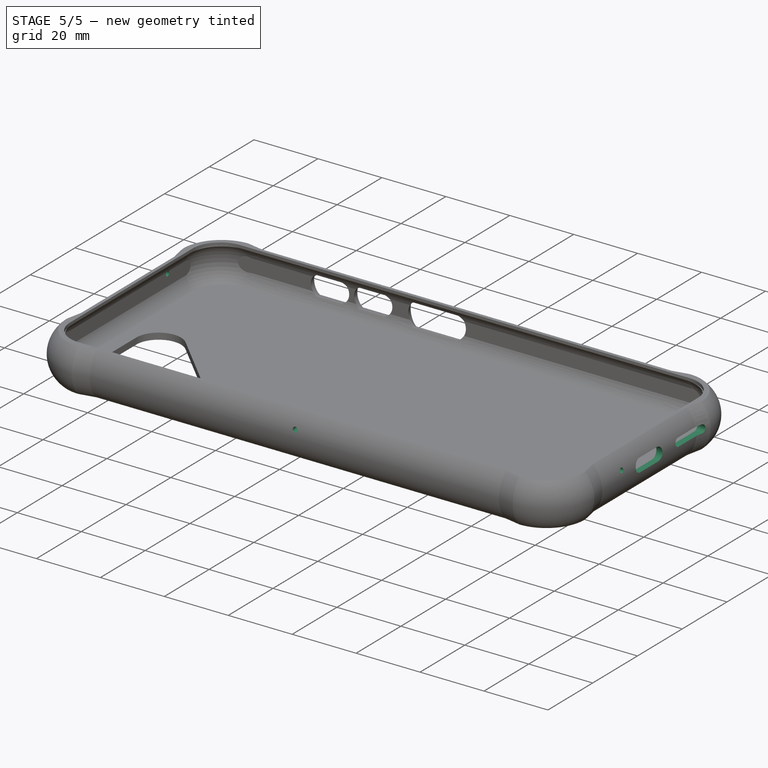
[diagram: stage 5 of 5 — iso view after this stage's code; geometry added in this stage tinted green]
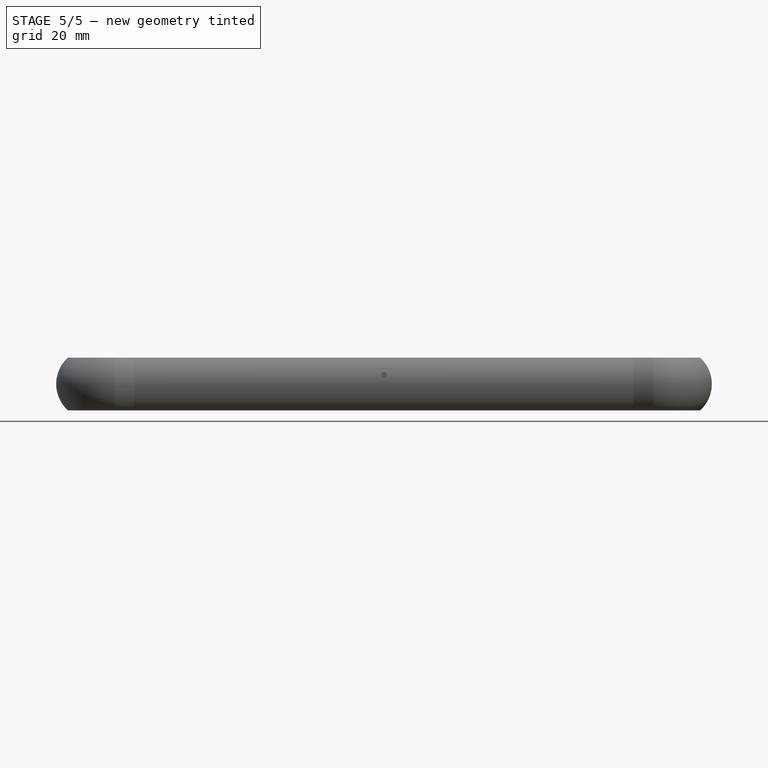
[diagram: stage 5 of 5 — front view after this stage's code; geometry added in this stage tinted green]
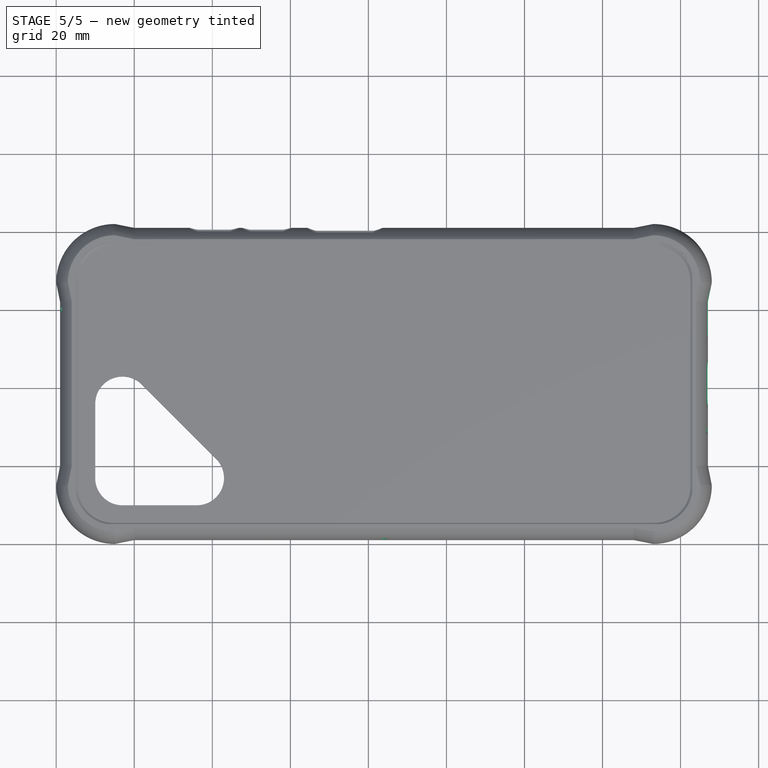
[diagram: stage 5 of 5 — top view after this stage's code; geometry added in this stage tinted green]
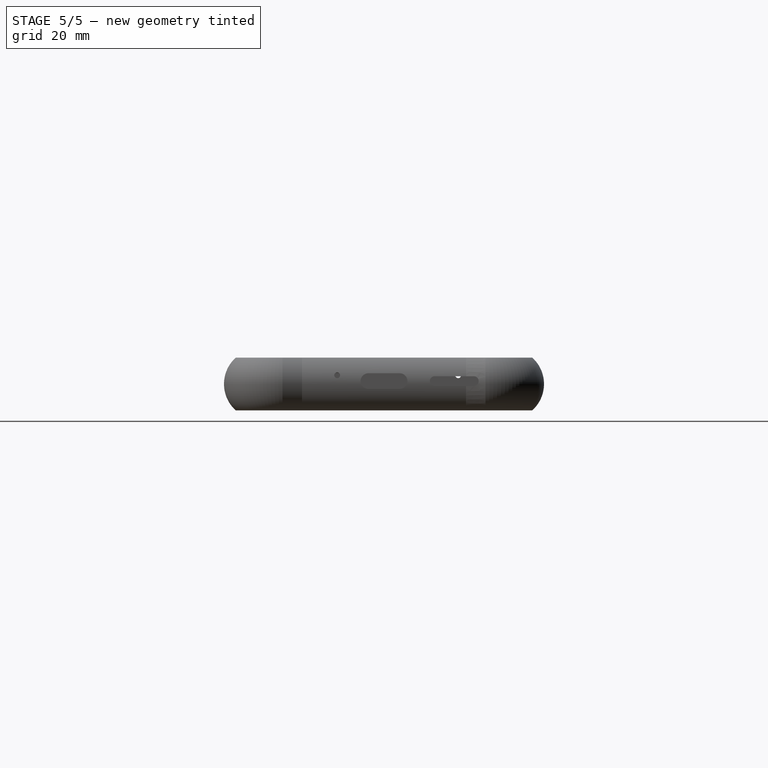
[diagram: stage 5 of 5 — right view after this stage's code; geometry added in this stage tinted green]
FEATURE [Sketcher::SketchObject] Sketch030  label="sketch_lower_circular_hole"
  FullyConstrained = true
  MapMode = 5
  Placement = pos=(168,0,0) rot=(0.57735,0.57735,0.57735;2.0944rad)
  Support = -> [Box]
  expr: Constraints[2] = <<dimensions>>.case_width / 2 - <<dimensions>>.lower_circular_hole_offset_center
  expr: Constraints[1] = <<dimensions>>.case_thickness_back + <<dimensions>>.circular_hole_height
  expr: Constraints[0] = <<dimensions>>.circular_hole_radius
  sketch-geometry (1):
    g0: Circle CenterX=29 CenterY=9 CenterZ=0 NormalX=0 NormalY=0 NormalZ=1 AngleXU=0 Radius=0.75
  constraints (3):
    c: Radius(g0) = 0.75
    c: DistanceY(g0) = 9
    c: DistanceX(g0) = 29
FEATURE [Sketcher::SketchObject] Sketch031  label="sketch_left_circular_hole"
  FullyConstrained = true
  MapMode = 5
  Placement = pos=(0,0,0) rot=(1,0,0;1.5708rad)
  Support = -> [Box]
  expr: Constraints[2] = <<dimensions>>.case_length / 2
  expr: Constraints[1] = <<dimensions>>.case_thickness_back + <<dimensions>>.circular_hole_height
  expr: Constraints[0] = <<dimensions>>.circular_hole_radius
  sketch-geometry (1):
    g0: Circle CenterX=84 CenterY=9 CenterZ=0 NormalX=0 NormalY=0 NormalZ=1 AngleXU=0 Radius=0.75
  constraints (3):
    c: Radius(g0) = 0.75
    c: DistanceY(g0) = 9
    c: DistanceX(g0) = 84
FEATURE [Sketcher::SketchObject] Sketch032  label="sketch_upper_circular_hole"
  FullyConstrained = true
  MapMode = 5
  Placement = pos=(0,0,0) rot=(0.57735,-0.57735,-0.57735;2.0944rad)
  Support = -> [Box]
  expr: Constraints[2] = <<dimensions>>.case_width / -2 - <<dimensions>>.upper_circular_hole_offset_center
  expr: Constraints[1] = <<dimensions>>.case_thickness_back + <<dimensions>>.circular_hole_height
  expr: Constraints[0] = <<dimensions>>.circular_hole_radius
  sketch-geometry (1):
    g0: Circle CenterX=-60 CenterY=9 CenterZ=0 NormalX=0 NormalY=0 NormalZ=1 AngleXU=0 Radius=0.75
  constraints (3):
    c: Radius(g0) = 0.75
    c: DistanceY(g0) = 9
    c: DistanceX(g0) = -60
FEATURE [Part::Extrusion] Extrude  label="lower_circular_hole"
  Base = -> Sketch030
  Dir = (1,0,0)
  DirMode = 2
  FaceMakerClass = Part::FaceMakerBullseye
  LengthFwd = 0
  LengthRev = 6
  Solid = true
  Symmetric = false
  expr: LengthRev = <<dimensions>>.side_hole_depth
FEATURE [Part::Extrusion] Extrude001  label="upper_circular_hole"
  Base = -> Sketch032
  Dir = (-1,0,0)
  DirMode = 2
  FaceMakerClass = Part::FaceMakerBullseye
  LengthFwd = 0
  LengthRev = 6
  Solid = true
  Symmetric = false
  expr: LengthRev = <<dimensions>>.side_hole_depth
FEATURE [Part::Extrusion] Extrude002  label="left_circular_hole"
  Base = -> Sketch031
  Dir = (0,-1,2e-16)
  DirMode = 2
  FaceMakerClass = Part::FaceMakerBullseye
  LengthFwd = 0
  LengthRev = 6
  Solid = true
  Symmetric = false
  expr: LengthRev = <<dimensions>>.side_hole_depth
FEATURE [Part::Fuse] Fusion024
  Base = -> Extrude
  Tool = -> Extrude001
FEATURE [Part::Fuse] Fusion025  label="circular_holes"
  Base = -> Extrude002
  Tool = -> Fusion024
FEATURE [Sketcher::SketchObject] Sketch033  label="sketch_usb_port"
  FullyConstrained = true
  MapMode = 5
  Placement = pos=(168,0,0) rot=(0.57735,0.57735,0.57735;2.0944rad)
  Support = -> [Box]
  expr: Constraints[9] = <<dimensions>>.case_width / 2 - (<<dimensions>>.usb_port_width - <<dimensions>>.usb_port_height) / 2
  expr: Constraints[8] = <<dimensions>>.usb_port_height_offset + <<dimensions>>.case_thickness_back
  expr: Constraints[7] = <<dimensions>>.usb_port_width - <<dimensions>>.usb_port_height
  expr: Constraints[6] = <<dimensions>>.usb_port_height
  sketch-geometry (4):
    g0: ArcOfCircle CenterX=37 CenterY=7.5 CenterZ=0 NormalX=0 NormalY=0 NormalZ=1 AngleXU=0 Radius=2 StartAngle=1.5708 EndAngle=4.71239
    g1: ArcOfCircle CenterX=45 CenterY=7.5 CenterZ=0 NormalX=0 NormalY=0 NormalZ=1 AngleXU=0 Radius=2 StartAngle=4.71239 EndAngle=7.85398
    g2: LineSegment StartX=37 StartY=5.5 StartZ=0 EndX=45 EndY=5.5 EndZ=0
    g3: LineSegment StartX=37 StartY=9.5 StartZ=0 EndX=45 EndY=9.5 EndZ=0
  constraints (10):
    c: Tangent(g0,g3) = 1.5708
    c: Tangent(g0,g2) = -1.5708
    c: Tangent(g2,g1) = -1.5708
    c: Tangent(g3,g1) = 1.5708
    c: Horizontal(g2)
    c: Equal(g0,g1)
    c: Diameter(g0) = 4
    c: Distance(g2) = 8
    c: DistanceY(g0) = 7.5
    c: DistanceX(g0) = 37
FEATURE [Part::Extrusion] Extrude003  label="usb_port"
  Base = -> Sketch033
  Dir = (1,0,0)
  DirMode = 2
  FaceMakerClass = Part::FaceMakerBullseye
  LengthFwd = 0
  LengthRev = 6
  Solid = true
  Symmetric = false
  expr: LengthRev = <<dimensions>>.side_hole_depth
FEATURE [Sketcher::SketchObject] Sketch034  label="sketch_right_port"
  FullyConstrained = true
  MapMode = 5
  Placement = pos=(168,0,0) rot=(0.57735,0.57735,0.57735;2.0944rad)
  Support = -> [Box]
  expr: Constraints[9] = <<dimensions>>.case_width / 2 + <<dimensions>>.right_port_center_offset - (<<dimensions>>.right_port_width - <<dimensions>>.right_port_height) / 2
  expr: Constraints[8] = <<dimensions>>.right_port_height_offset + <<dimensions>>.case_thickness_back
  expr: Constraints[7] = <<dimensions>>.right_port_width - <<dimensions>>.right_port_height
  expr: Constraints[6] = <<dimensions>>.right_port_height
  sketch-geometry (4):
    g0: ArcOfCircle CenterX=54 CenterY=7.5 CenterZ=0 NormalX=0 NormalY=0 NormalZ=1 AngleXU=0 Radius=1.25 StartAngle=1.5708 EndAngle=4.71239
    g1: ArcOfCircle CenterX=64 CenterY=7.5 CenterZ=0 NormalX=0 NormalY=0 NormalZ=1 AngleXU=0 Radius=1.25 StartAngle=4.71239 EndAngle=7.85398
    g2: LineSegment StartX=54 StartY=6.25 StartZ=0 EndX=64 EndY=6.25 EndZ=0
    g3: LineSegment StartX=54 StartY=8.75 StartZ=0 EndX=64 EndY=8.75 EndZ=0
  constraints (10):
    c: Tangent(g0,g3) = 1.5708
    c: Tangent(g0,g2) = -1.5708
    c: Tangent(g2,g1) = -1.5708
    c: Tangent(g3,g1) = 1.5708
    c: Horizontal(g2)
    c: Equal(g0,g1)
    c: Diameter(g0) = 2.5
    c: Distance(g3) = 10
    c: DistanceY(g0) = 7.5
    c: DistanceX(g0) = 54
FEATURE [Part::Extrusion] Extrude004  label="right_port"
  Base = -> Sketch034
  Dir = (1,0,0)
  DirMode = 2
  FaceMakerClass = Part::FaceMakerBullseye
  LengthFwd = 0
  LengthRev = 6
  Solid = true
  Symmetric = false
  expr: LengthRev = <<dimensions>>.side_hole_depth
FEATURE [Part::Fuse] Fusion026  label="lock_button"
  Base = -> Extrude005
  Tool = -> Loft020
FEATURE [Part::Fuse] Fusion030  label="lower_ports"
  Base = -> Extrude003
  Tool = -> Extrude004
FEATURE [Part::Fuse] Fusion031  label="right_buttons"
  Base = -> Fusion026
  Tool = -> Fusion029
FEATURE [Part::Fuse] Fusion032
  Base = -> Fusion030
  Tool = -> Fusion031
FEATURE [Part::Fuse] Fusion033  label="side_holes"
  Base = -> Fusion025
  Tool = -> Fusion032
FEATURE [Part::Cut] Cut008  label="fairphone4_case"
  Base = -> Cut007
  Tool = -> Fusion033
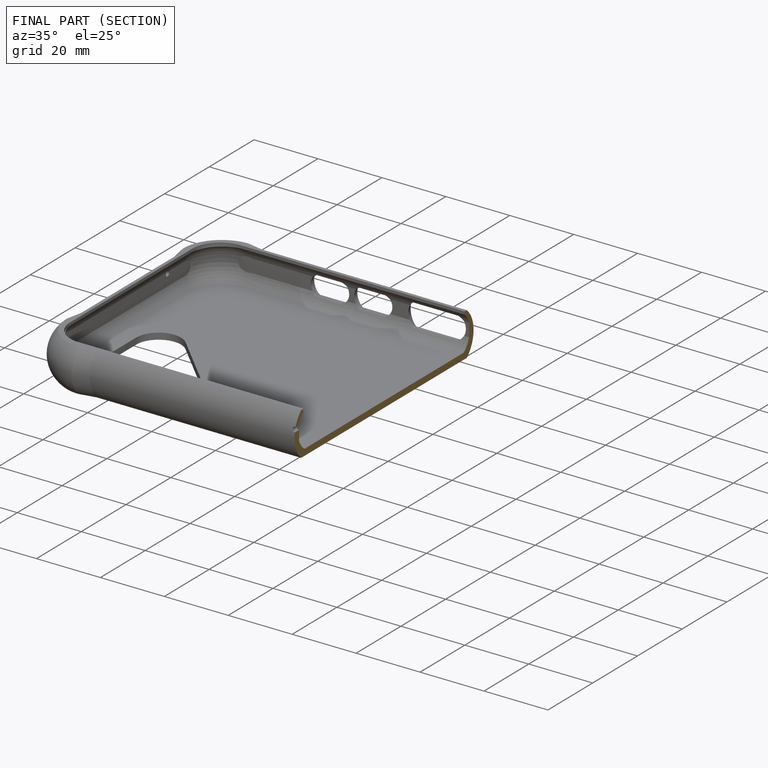
[diagram: finished part — half-section view (interior)]
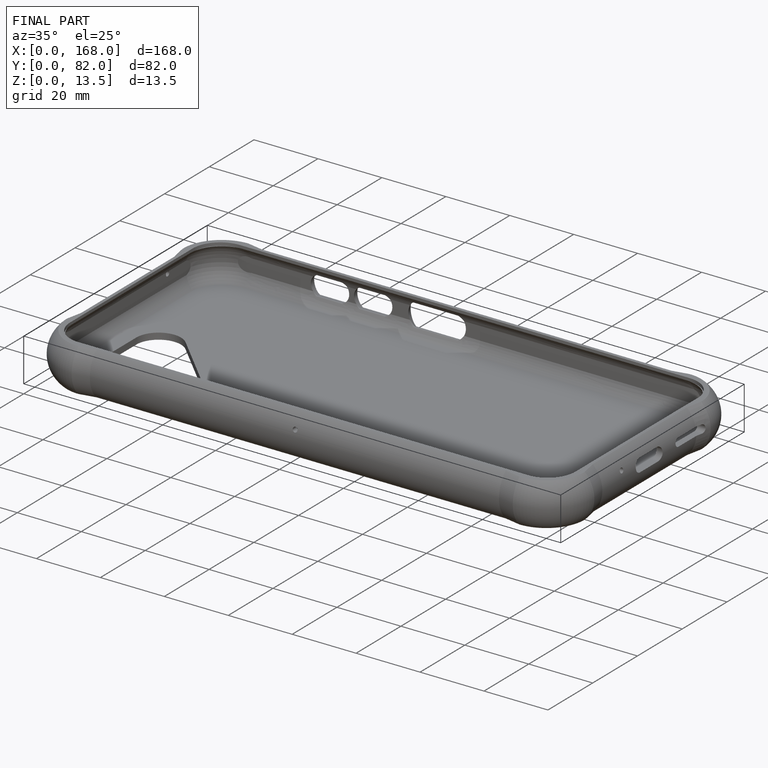
[diagram: finished part — iso view with bounding-box wireframe]
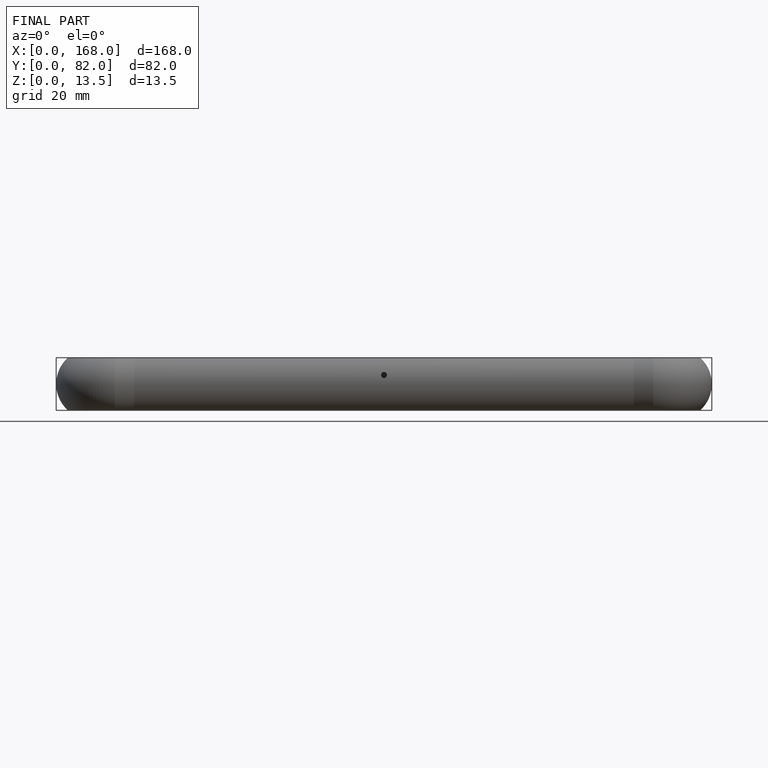
[diagram: finished part — front view with bounding-box wireframe]
